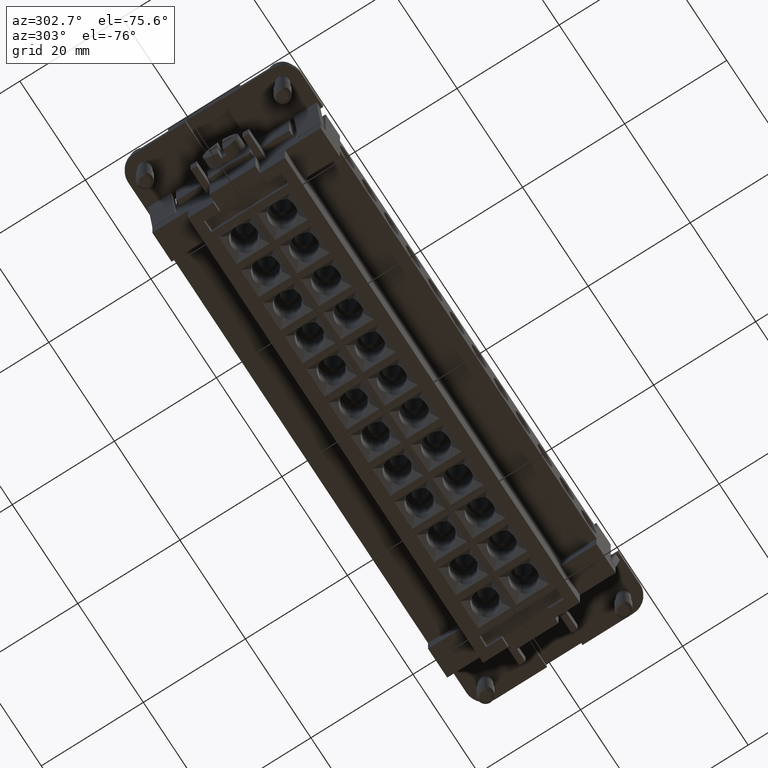
[diagram: clean part render]
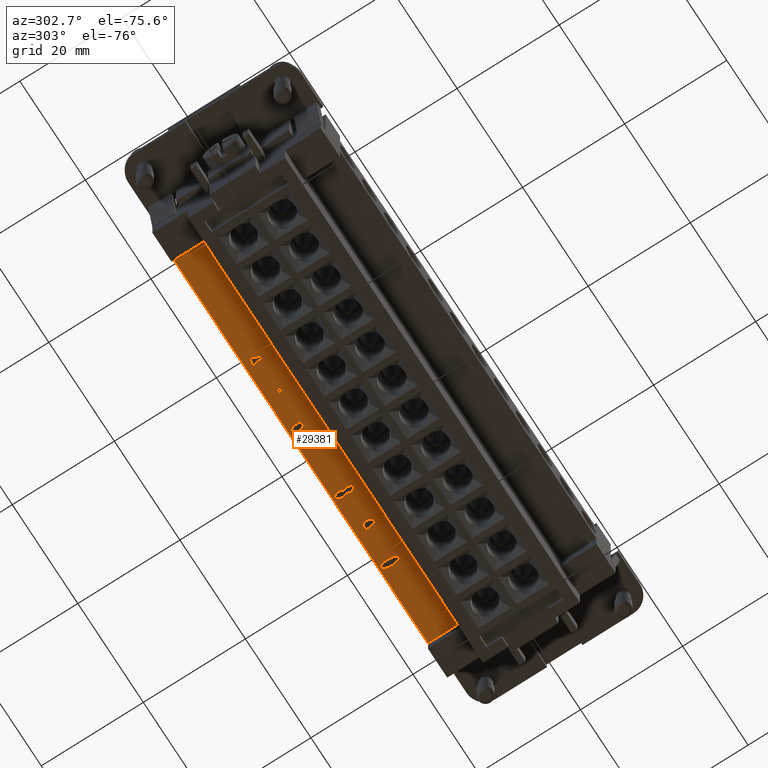
[diagram: same view with one face highlighted and labeled with its STEP entity id]
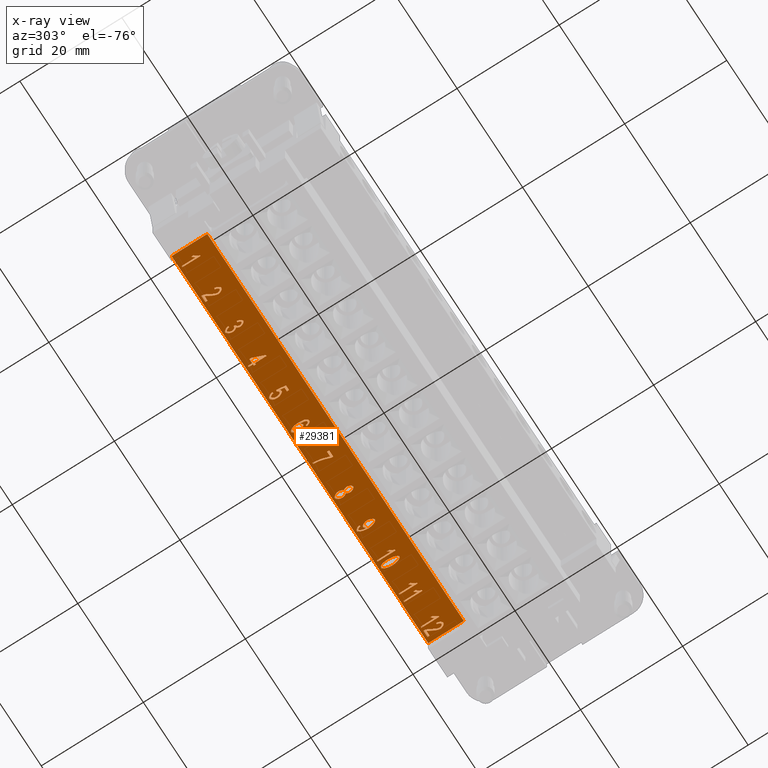
[diagram: x-ray of the same camera — body ghosted, the highlighted face saturated]
A machine part, auxiliary view. The second image highlights one B-rep face of the part: STEP entity #29381.
The next image is the same camera in x-ray: the body ghosted, the highlighted face saturated — about 0% of this face is hidden behind the body in this view.
In plain terms, the highlighted planar face has unit normal (0, 0, -1).
Its self-contained STEP definition (entity closure, byte-faithful):
#16999=CARTESIAN_POINT('',(36.356478648087524,16.013338513730456,8.650000000000000));
#17000=VERTEX_POINT('',#16999);
#17007=CARTESIAN_POINT('',(36.356478648087524,12.500000158928106,8.650000000000000));
#17008=VERTEX_POINT('',#17007);
#17009=CARTESIAN_POINT('',(36.356478648087524,12.500000158928106,8.650000000000000));
#17010=DIRECTION('',(0.0,1.0,0.0));
#17011=VECTOR('',#17010,3.513338354802350);
#17012=LINE('',#17009,#17011);
#17013=EDGE_CURVE('',#17008,#17000,#17012,.T.);
#17038=CARTESIAN_POINT('',(36.204420723847790,12.500000158928106,8.650000000000000));
#17039=VERTEX_POINT('',#17038);
#17040=CARTESIAN_POINT('',(36.204420723847790,12.500000158928106,8.650000000000000));
#17041=DIRECTION('',(1.0,0.0,0.0));
#17042=VECTOR('',#17041,0.152057924239735);
#17043=LINE('',#17040,#17042);
#17044=EDGE_CURVE('',#17039,#17008,#17043,.T.);
#17074=CARTESIAN_POINT('',(35.649542684516817,13.377667826908347,8.650000000000000));
#17075=VERTEX_POINT('',#17074);
#17076=CARTESIAN_POINT('',(35.649542684516817,13.377667826908347,8.650000000000000));
#17077=CARTESIAN_POINT('',(35.846951217740333,13.209603805380215,8.650000000000000));
#17078=CARTESIAN_POINT('',(36.143064017575611,12.726753203847014,8.650000000000000));
#17079=CARTESIAN_POINT('',(36.204420723847790,12.500000158928106,8.650000000000000));
#17080=QUASI_UNIFORM_CURVE('',3,(#17076,#17077,#17078,#17079),.UNSPECIFIED.,.F.,.U.);
#17081=EDGE_CURVE('',#17075,#17039,#17080,.T.);
#17106=CARTESIAN_POINT('',(35.649542684516817,13.793826356406571,8.650000000000000));
#17107=VERTEX_POINT('',#17106);
#17108=CARTESIAN_POINT('',(35.649542684516817,13.793826356406571,8.650000000000000));
#17109=DIRECTION('',(0.0,-1.0,0.0));
#17110=VECTOR('',#17109,0.416158529498224);
#17111=LINE('',#17108,#17110);
#17112=EDGE_CURVE('',#17107,#17075,#17111,.T.);
#17142=CARTESIAN_POINT('',(36.121722554524425,13.276295877415185,8.650000000000000));
#17143=VERTEX_POINT('',#17142);
#17144=CARTESIAN_POINT('',(36.121722554524425,13.276295877415185,8.650000000000000));
#17145=CARTESIAN_POINT('',(36.036356702319658,13.423018435892127,8.650000000000000));
#17146=CARTESIAN_POINT('',(35.758917682654172,13.719131235727403,8.650000000000000));
#17147=CARTESIAN_POINT('',(35.649542684516817,13.793826356406571,8.650000000000000));
#17148=QUASI_UNIFORM_CURVE('',3,(#17144,#17145,#17146,#17147),.UNSPECIFIED.,.F.,.U.);
#17149=EDGE_CURVE('',#17143,#17107,#17148,.T.);
#17174=CARTESIAN_POINT('',(36.121722554524425,16.013338513730456,8.650000000000000));
#17175=VERTEX_POINT('',#17174);
#17176=CARTESIAN_POINT('',(36.121722554524425,16.013338513730456,8.650000000000000));
#17177=DIRECTION('',(0.0,-1.0,0.0));
#17178=VECTOR('',#17177,2.737042636315271);
#17179=LINE('',#17176,#17178);
#17180=EDGE_CURVE('',#17175,#17143,#17179,.T.);
#17203=CARTESIAN_POINT('',(36.356478648087524,16.013338513730456,8.650000000000000));
#17204=DIRECTION('',(-1.0,0.0,0.0));
#17205=VECTOR('',#17204,0.234756093563099);
#17206=LINE('',#17203,#17205);
#17207=EDGE_CURVE('',#17000,#17175,#17206,.T.);
#17243=CARTESIAN_POINT('',(29.656478648087521,16.013338513730474,8.650000000000000));
#17244=VERTEX_POINT('',#17243);
#17251=CARTESIAN_POINT('',(29.656478648087521,12.500000158928124,8.650000000000000));
#17252=VERTEX_POINT('',#17251);
#17253=CARTESIAN_POINT('',(29.656478648087521,12.500000158928124,8.650000000000000));
#17254=DIRECTION('',(0.0,1.0,0.0));
#17255=VECTOR('',#17254,3.513338354802350);
#17256=LINE('',#17253,#17255);
#17257=EDGE_CURVE('',#17252,#17244,#17256,.T.);
#17282=CARTESIAN_POINT('',(29.504420723847787,12.500000158928124,8.650000000000000));
#17283=VERTEX_POINT('',#17282);
#17284=CARTESIAN_POINT('',(29.504420723847787,12.500000158928124,8.650000000000000));
#17285=DIRECTION('',(1.0,0.0,0.0));
#17286=VECTOR('',#17285,0.152057924239735);
#17287=LINE('',#17284,#17286);
#17288=EDGE_CURVE('',#17283,#17252,#17287,.T.);
#17318=CARTESIAN_POINT('',(28.949542684516814,13.377667826908365,8.650000000000000));
#17319=VERTEX_POINT('',#17318);
#17320=CARTESIAN_POINT('',(28.949542684516814,13.377667826908365,8.650000000000000));
#17321=CARTESIAN_POINT('',(29.146951217740337,13.209603805380233,8.650000000000000));
#17322=CARTESIAN_POINT('',(29.443064017575615,12.726753203847032,8.650000000000000));
#17323=CARTESIAN_POINT('',(29.504420723847787,12.500000158928124,8.650000000000000));
#17324=QUASI_UNIFORM_CURVE('',3,(#17320,#17321,#17322,#17323),.UNSPECIFIED.,.F.,.U.);
#17325=EDGE_CURVE('',#17319,#17283,#17324,.T.);
#17350=CARTESIAN_POINT('',(28.949542684516814,13.793826356406589,8.650000000000000));
#17351=VERTEX_POINT('',#17350);
#17352=CARTESIAN_POINT('',(28.949542684516814,13.793826356406589,8.650000000000000));
#17353=DIRECTION('',(0.0,-1.0,0.0));
#17354=VECTOR('',#17353,0.416158529498224);
#17355=LINE('',#17352,#17354);
#17356=EDGE_CURVE('',#17351,#17319,#17355,.T.);
#17386=CARTESIAN_POINT('',(29.421722554524425,13.276295877415203,8.650000000000000));
#17387=VERTEX_POINT('',#17386);
#17388=CARTESIAN_POINT('',(29.421722554524425,13.276295877415203,8.650000000000000));
#17389=CARTESIAN_POINT('',(29.336356702319655,13.423018435892144,8.650000000000000));
#17390=CARTESIAN_POINT('',(29.058917682654169,13.719131235727421,8.650000000000000));
#17391=CARTESIAN_POINT('',(28.949542684516814,13.793826356406589,8.650000000000000));
#17392=QUASI_UNIFORM_CURVE('',3,(#17388,#17389,#17390,#17391),.UNSPECIFIED.,.F.,.U.);
#17393=EDGE_CURVE('',#17387,#17351,#17392,.T.);
#17418=CARTESIAN_POINT('',(29.421722554524425,16.013338513730474,8.650000000000000));
#17419=VERTEX_POINT('',#17418);
#17420=CARTESIAN_POINT('',(29.421722554524425,16.013338513730474,8.650000000000000));
#17421=DIRECTION('',(0.0,-1.0,0.0));
#17422=VECTOR('',#17421,2.737042636315271);
#17423=LINE('',#17420,#17422);
#17424=EDGE_CURVE('',#17419,#17387,#17423,.T.);
#17447=CARTESIAN_POINT('',(29.656478648087521,16.013338513730474,8.650000000000000));
#17448=DIRECTION('',(-1.0,0.0,0.0));
#17449=VECTOR('',#17448,0.234756093563096);
#17450=LINE('',#17447,#17449);
#17451=EDGE_CURVE('',#17244,#17419,#17450,.T.);
#17487=CARTESIAN_POINT('',(22.956478648087540,16.013338513730492,8.650000000000000));
#17488=VERTEX_POINT('',#17487);
#17495=CARTESIAN_POINT('',(22.956478648087540,12.500000158928145,8.650000000000000));
#17496=VERTEX_POINT('',#17495);
#17497=CARTESIAN_POINT('',(22.956478648087540,12.500000158928145,8.650000000000000));
#17498=DIRECTION('',(0.0,1.0,0.0));
#17499=VECTOR('',#17498,3.513338354802347);
#17500=LINE('',#17497,#17499);
#17501=EDGE_CURVE('',#17496,#17488,#17500,.T.);
#17526=CARTESIAN_POINT('',(22.804420723847805,12.500000158928145,8.650000000000000));
#17527=VERTEX_POINT('',#17526);
#17528=CARTESIAN_POINT('',(22.804420723847805,12.500000158928145,8.650000000000000));
#17529=DIRECTION('',(1.0,0.0,0.0));
#17530=VECTOR('',#17529,0.152057924239735);
#17531=LINE('',#17528,#17530);
#17532=EDGE_CURVE('',#17527,#17496,#17531,.T.);
#17562=CARTESIAN_POINT('',(22.249542684516832,13.377667826908382,8.650000000000000));
#17563=VERTEX_POINT('',#17562);
#17564=CARTESIAN_POINT('',(22.249542684516832,13.377667826908382,8.650000000000000));
#17565=CARTESIAN_POINT('',(22.446951217740356,13.209603805380251,8.650000000000000));
#17566=CARTESIAN_POINT('',(22.743064017575634,12.726753203847050,8.650000000000000));
#17567=CARTESIAN_POINT('',(22.804420723847805,12.500000158928145,8.650000000000000));
#17568=QUASI_UNIFORM_CURVE('',3,(#17564,#17565,#17566,#17567),.UNSPECIFIED.,.F.,.U.);
#17569=EDGE_CURVE('',#17563,#17527,#17568,.T.);
#17594=CARTESIAN_POINT('',(22.249542684516832,13.793826356406612,8.650000000000000));
#17595=VERTEX_POINT('',#17594);
#17596=CARTESIAN_POINT('',(22.249542684516832,13.793826356406612,8.650000000000000));
#17597=DIRECTION('',(0.0,-1.0,0.0));
#17598=VECTOR('',#17597,0.416158529498230);
#17599=LINE('',#17596,#17598);
#17600=EDGE_CURVE('',#17595,#17563,#17599,.T.);
#17630=CARTESIAN_POINT('',(22.721722554524444,13.276295877415226,8.650000000000000));
#17631=VERTEX_POINT('',#17630);
#17632=CARTESIAN_POINT('',(22.721722554524444,13.276295877415226,8.650000000000000));
#17633=CARTESIAN_POINT('',(22.636356702319674,13.423018435892162,8.650000000000000));
#17634=CARTESIAN_POINT('',(22.358917682654187,13.719131235727442,8.650000000000000));
#17635=CARTESIAN_POINT('',(22.249542684516832,13.793826356406612,8.650000000000000));
#17636=QUASI_UNIFORM_CURVE('',3,(#17632,#17633,#17634,#17635),.UNSPECIFIED.,.F.,.U.);
#17637=EDGE_CURVE('',#17631,#17595,#17636,.T.);
#17662=CARTESIAN_POINT('',(22.721722554524444,16.013338513730492,8.650000000000000));
#17663=VERTEX_POINT('',#17662);
#17664=CARTESIAN_POINT('',(22.721722554524444,16.013338513730492,8.650000000000000));
#17665=DIRECTION('',(0.0,-1.0,0.0));
#17666=VECTOR('',#17665,2.737042636315266);
#17667=LINE('',#17664,#17666);
#17668=EDGE_CURVE('',#17663,#17631,#17667,.T.);
#17691=CARTESIAN_POINT('',(22.956478648087540,16.013338513730492,8.650000000000000));
#17692=DIRECTION('',(-1.0,0.0,0.0));
#17693=VECTOR('',#17692,0.234756093563096);
#17694=LINE('',#17691,#17693);
#17695=EDGE_CURVE('',#17488,#17663,#17694,.T.);
#18036=CARTESIAN_POINT('',(9.781897860992572,14.113948302174517,8.650000000000000));
#18037=VERTEX_POINT('',#18036);
#18044=CARTESIAN_POINT('',(9.413757623359524,14.999619018798951,8.650000000000000));
#18045=VERTEX_POINT('',#18044);
#18046=CARTESIAN_POINT('',(9.413757623359524,14.999619018798951,8.650000000000000));
#18047=CARTESIAN_POINT('',(9.413757623359524,14.658155609979890,8.650000000000000));
#18048=CARTESIAN_POINT('',(9.605830790820242,14.196646471497880,8.650000000000000));
#18049=CARTESIAN_POINT('',(9.781897860992572,14.113948302174517,8.650000000000000));
#18050=QUASI_UNIFORM_CURVE('',3,(#18046,#18047,#18048,#18049),.UNSPECIFIED.,.F.,.U.);
#18051=EDGE_CURVE('',#18045,#18037,#18050,.T.);
#18081=CARTESIAN_POINT('',(10.045998466251067,16.072027537121308,8.650000000000000));
#18082=VERTEX_POINT('',#18081);
#18083=CARTESIAN_POINT('',(10.045998466251067,16.072027537121308,8.650000000000000));
#18084=CARTESIAN_POINT('',(9.763224080822779,16.072027537121308,8.650000000000000));
#18085=CARTESIAN_POINT('',(9.413757623359524,15.458460474399560,8.650000000000000));
#18086=CARTESIAN_POINT('',(9.413757623359524,14.999619018798951,8.650000000000000));
#18087=QUASI_UNIFORM_CURVE('',3,(#18083,#18084,#18085,#18086),.UNSPECIFIED.,.F.,.U.);
#18088=EDGE_CURVE('',#18082,#18045,#18087,.T.);
#18118=CARTESIAN_POINT('',(10.678239309142599,15.012957433205948,8.650000000000000));
#18119=VERTEX_POINT('',#18118);
#18120=CARTESIAN_POINT('',(10.678239309142601,15.012957433205948,8.650000000000000));
#18121=CARTESIAN_POINT('',(10.678239309142601,15.461128157280960,8.650000000000000));
#18122=CARTESIAN_POINT('',(10.328772851679346,16.072027537121308,8.650000000000000));
#18123=CARTESIAN_POINT('',(10.045998466251067,16.072027537121308,8.650000000000000));
#18124=QUASI_UNIFORM_CURVE('',3,(#18120,#18121,#18122,#18123),.UNSPECIFIED.,.F.,.U.);
#18125=EDGE_CURVE('',#18119,#18082,#18124,.T.);
#18155=CARTESIAN_POINT('',(10.318102120153751,14.113948302174519,8.650000000000000));
#18156=VERTEX_POINT('',#18155);
#18157=CARTESIAN_POINT('',(10.318102120153751,14.113948302174517,8.650000000000000));
#18158=CARTESIAN_POINT('',(10.494169190326081,14.217987934549075,8.650000000000000));
#18159=CARTESIAN_POINT('',(10.678239309142601,14.687500121675278,8.650000000000000));
#18160=CARTESIAN_POINT('',(10.678239309142601,15.012957433205948,8.650000000000000));
#18161=QUASI_UNIFORM_CURVE('',3,(#18157,#18158,#18159,#18160),.UNSPECIFIED.,.F.,.U.);
#18162=EDGE_CURVE('',#18156,#18119,#18161,.T.);
#18192=CARTESIAN_POINT('',(10.600876505582029,13.412347704366606,8.650000000000000));
#18193=VERTEX_POINT('',#18192);
#18194=CARTESIAN_POINT('',(10.600876505582031,13.412347704366606,8.650000000000000));
#18195=CARTESIAN_POINT('',(10.600876505582031,13.655106846573904,8.650000000000000));
#18196=CARTESIAN_POINT('',(10.459489312867891,14.015244035562757,8.650000000000000));
#18197=CARTESIAN_POINT('',(10.318102120153751,14.113948302174517,8.650000000000000));
#18198=QUASI_UNIFORM_CURVE('',3,(#18194,#18195,#18196,#18197),.UNSPECIFIED.,.F.,.U.);
#18199=EDGE_CURVE('',#18193,#18156,#18198,.T.);
#18229=CARTESIAN_POINT('',(10.043330783369663,12.500000158928181,8.650000000000000));
#18230=VERTEX_POINT('',#18229);
#18231=CARTESIAN_POINT('',(10.043330783369662,12.500000158928181,8.650000000000000));
#18232=CARTESIAN_POINT('',(10.294092974221165,12.500000158928181,8.650000000000000));
#18233=CARTESIAN_POINT('',(10.600876505582031,13.030869052326564,8.650000000000000));
#18234=CARTESIAN_POINT('',(10.600876505582031,13.412347704366606,8.650000000000000));
#18235=QUASI_UNIFORM_CURVE('',3,(#18231,#18232,#18233,#18234),.UNSPECIFIED.,.F.,.U.);
#18236=EDGE_CURVE('',#18230,#18193,#18235,.T.);
#18266=CARTESIAN_POINT('',(9.491120426920096,13.401676972841006,8.650000000000000));
#18267=VERTEX_POINT('',#18266);
#18268=CARTESIAN_POINT('',(9.491120426920094,13.401676972841008,8.650000000000000));
#18269=CARTESIAN_POINT('',(9.491120426920094,13.020198320800969,8.650000000000000));
#18270=CARTESIAN_POINT('',(9.792568592518167,12.500000158928181,8.650000000000000));
#18271=CARTESIAN_POINT('',(10.043330783369662,12.500000158928181,8.650000000000000));
#18272=QUASI_UNIFORM_CURVE('',3,(#18268,#18269,#18270,#18271),.UNSPECIFIED.,.F.,.U.);
#18273=EDGE_CURVE('',#18267,#18230,#18272,.T.);
#18301=CARTESIAN_POINT('',(9.781897860992572,14.113948302174517,8.650000000000000));
#18302=CARTESIAN_POINT('',(9.632507619634234,14.015244035562757,8.650000000000000));
#18303=CARTESIAN_POINT('',(9.491120426920094,13.652439163692506,8.650000000000000));
#18304=CARTESIAN_POINT('',(9.491120426920094,13.401676972841008,8.650000000000000));
#18305=QUASI_UNIFORM_CURVE('',3,(#18301,#18302,#18303,#18304),.UNSPECIFIED.,.F.,.U.);
#18306=EDGE_CURVE('',#18037,#18267,#18305,.T.);
#18512=CARTESIAN_POINT('',(-2.759108251196976,13.372332461145660,8.650000000000000));
#18513=VERTEX_POINT('',#18512);
#18520=CARTESIAN_POINT('',(-3.303315559002353,12.500000158928216,8.650000000000000));
#18521=VERTEX_POINT('',#18520);
#18522=CARTESIAN_POINT('',(-3.303315559002353,12.500000158928216,8.650000000000000));
#18523=CARTESIAN_POINT('',(-3.076562514083445,12.500000158928216,8.650000000000000));
#18524=CARTESIAN_POINT('',(-2.788452762892364,12.964176980291624,8.650000000000000));
#18525=CARTESIAN_POINT('',(-2.759108251196976,13.372332461145660,8.650000000000000));
#18526=QUASI_UNIFORM_CURVE('',3,(#18522,#18523,#18524,#18525),.UNSPECIFIED.,.F.,.U.);
#18527=EDGE_CURVE('',#18521,#18513,#18526,.T.);
#18554=CARTESIAN_POINT('',(-3.788833843416950,12.900152591138054,8.650000000000000));
#18555=VERTEX_POINT('',#18554);
#18556=CARTESIAN_POINT('',(-3.788833843416950,12.900152591138054,8.650000000000000));
#18557=CARTESIAN_POINT('',(-3.607431407481827,12.500000158928216,8.650000000000000));
#18558=CARTESIAN_POINT('',(-3.303315559002353,12.500000158928216,8.650000000000000));
#18559=QUASI_UNIFORM_CURVE('',2,(#18556,#18557,#18558),.UNSPECIFIED.,.F.,.U.);
#18560=EDGE_CURVE('',#18555,#18521,#18559,.T.);
#18587=CARTESIAN_POINT('',(-3.994245425284668,14.375381224551642,8.650000000000000));
#18588=VERTEX_POINT('',#18587);
#18589=CARTESIAN_POINT('',(-3.994245425284668,14.375381224551642,8.650000000000000));
#18590=CARTESIAN_POINT('',(-3.994245425284668,13.361661729620060,8.650000000000000));
#18591=CARTESIAN_POINT('',(-3.788833843416950,12.900152591138054,8.650000000000000));
#18592=QUASI_UNIFORM_CURVE('',2,(#18589,#18590,#18591),.UNSPECIFIED.,.F.,.U.);
#18593=EDGE_CURVE('',#18588,#18555,#18592,.T.);
#18623=CARTESIAN_POINT('',(-3.327324704934940,16.072027537121343,8.650000000000000));
#18624=VERTEX_POINT('',#18623);
#18625=CARTESIAN_POINT('',(-3.327324704934940,16.072027537121343,8.650000000000000));
#18626=CARTESIAN_POINT('',(-3.623437504770219,16.072027537121343,8.650000000000000));
#18627=CARTESIAN_POINT('',(-3.994245425284668,15.282393404227271,8.650000000000000));
#18628=CARTESIAN_POINT('',(-3.994245425284668,14.375381224551642,8.650000000000000));
#18629=QUASI_UNIFORM_CURVE('',3,(#18625,#18626,#18627,#18628),.UNSPECIFIED.,.F.,.U.);
#18630=EDGE_CURVE('',#18624,#18588,#18629,.T.);
#18663=CARTESIAN_POINT('',(-2.727096056620191,14.876905606254635,8.650000000000000));
#18664=VERTEX_POINT('',#18663);
#18665=CARTESIAN_POINT('',(-2.727096056620191,14.876905606254635,8.650000000000000));
#18666=CARTESIAN_POINT('',(-2.727096056620191,15.205030600666699,8.650000000000000));
#18667=CARTESIAN_POINT('',(-2.881821663741326,15.770579371523269,8.650000000000000));
#18668=CARTESIAN_POINT('',(-3.153925317644015,16.072027537121343,8.650000000000000));
#18669=CARTESIAN_POINT('',(-3.327324704934940,16.072027537121343,8.650000000000000));
#18670=QUASI_UNIFORM_CURVE('',4,(#18665,#18666,#18667,#18668,#18669),.UNSPECIFIED.,.F.,.U.);
#18671=EDGE_CURVE('',#18664,#18624,#18670,.T.);
#18701=CARTESIAN_POINT('',(-3.292644827476754,13.743140381660107,8.650000000000000));
#18702=VERTEX_POINT('',#18701);
#18703=CARTESIAN_POINT('',(-3.292644827476754,13.743140381660105,8.650000000000000));
#18704=CARTESIAN_POINT('',(-3.057888733913652,13.743140381660105,8.650000000000000));
#18705=CARTESIAN_POINT('',(-2.727096056620191,14.375381224551642,8.650000000000000));
#18706=CARTESIAN_POINT('',(-2.727096056620191,14.876905606254635,8.650000000000000));
#18707=QUASI_UNIFORM_CURVE('',3,(#18703,#18704,#18705,#18706),.UNSPECIFIED.,.F.,.U.);
#18708=EDGE_CURVE('',#18702,#18664,#18707,.T.);
#18738=CARTESIAN_POINT('',(-3.759489331721561,14.209984885904909,8.650000000000000));
#18739=VERTEX_POINT('',#18738);
#18740=CARTESIAN_POINT('',(-3.759489331721562,14.209984885904912,8.650000000000000));
#18741=CARTESIAN_POINT('',(-3.674123479516798,13.972561109460408,8.650000000000000));
#18742=CARTESIAN_POINT('',(-3.428696654428101,13.743140381660105,8.650000000000000));
#18743=CARTESIAN_POINT('',(-3.292644827476754,13.743140381660105,8.650000000000000));
#18744=QUASI_UNIFORM_CURVE('',3,(#18740,#18741,#18742,#18743),.UNSPECIFIED.,.F.,.U.);
#18745=EDGE_CURVE('',#18739,#18702,#18744,.T.);
#18775=CARTESIAN_POINT('',(-3.519397872395662,12.966844663173024,8.650000000000000));
#18776=VERTEX_POINT('',#18775);
#18777=CARTESIAN_POINT('',(-3.519397872395662,12.966844663173024,8.650000000000000));
#18778=CARTESIAN_POINT('',(-3.628772870533017,13.113567221649966,8.650000000000000));
#18779=CARTESIAN_POINT('',(-3.756821648840165,13.684451358269328,8.650000000000000));
#18780=CARTESIAN_POINT('',(-3.759489331721562,14.209984885904912,8.650000000000000));
#18781=QUASI_UNIFORM_CURVE('',3,(#18777,#18778,#18779,#18780),.UNSPECIFIED.,.F.,.U.);
#18782=EDGE_CURVE('',#18776,#18739,#18781,.T.);
#18809=CARTESIAN_POINT('',(-3.319321656290746,12.852134299272873,8.650000000000000));
#18810=VERTEX_POINT('',#18809);
#18811=CARTESIAN_POINT('',(-3.319321656290746,12.852134299272873,8.650000000000000));
#18812=CARTESIAN_POINT('',(-3.431364337309497,12.852134299272873,8.650000000000000));
#18813=CARTESIAN_POINT('',(-3.519397872395662,12.966844663173024,8.650000000000000));
#18814=QUASI_UNIFORM_CURVE('',2,(#18811,#18812,#18813),.UNSPECIFIED.,.F.,.U.);
#18815=EDGE_CURVE('',#18810,#18776,#18814,.T.);
#18842=CARTESIAN_POINT('',(-3.081897879846243,13.036204418089399,8.650000000000000));
#18843=VERTEX_POINT('',#18842);
#18844=CARTESIAN_POINT('',(-3.081897879846243,13.036204418089397,8.650000000000000));
#18845=CARTESIAN_POINT('',(-3.177934463576602,12.852134299272873,8.650000000000000));
#18846=CARTESIAN_POINT('',(-3.319321656290746,12.852134299272873,8.650000000000000));
#18847=QUASI_UNIFORM_CURVE('',2,(#18844,#18845,#18846),.UNSPECIFIED.,.F.,.U.);
#18848=EDGE_CURVE('',#18843,#18810,#18847,.T.);
#18875=CARTESIAN_POINT('',(-2.993864344760078,13.407012338603845,8.650000000000000));
#18876=VERTEX_POINT('',#18875);
#18877=CARTESIAN_POINT('',(-2.993864344760078,13.407012338603845,8.650000000000000));
#18878=CARTESIAN_POINT('',(-3.025876539336867,13.153582464870951,8.650000000000000));
#18879=CARTESIAN_POINT('',(-3.081897879846243,13.036204418089397,8.650000000000000));
#18880=QUASI_UNIFORM_CURVE('',2,(#18877,#18878,#18879),.UNSPECIFIED.,.F.,.U.);
#18881=EDGE_CURVE('',#18876,#18843,#18880,.T.);
#18904=CARTESIAN_POINT('',(-2.759108251196976,13.372332461145660,8.650000000000000));
#18905=DIRECTION('',(-0.989263736217635,0.146141233759421,0.0));
#18906=VECTOR('',#18905,0.237303850296456);
#18907=LINE('',#18904,#18906);
#18908=EDGE_CURVE('',#18513,#18876,#18907,.T.);
#19048=CARTESIAN_POINT('',(-16.628620438323178,16.000000098720243,8.650000000000000));
#19049=VERTEX_POINT('',#19048);
#19056=CARTESIAN_POINT('',(-16.393864344760072,16.000000098720243,8.650000000000000));
#19057=VERTEX_POINT('',#19056);
#19058=CARTESIAN_POINT('',(-16.393864344760072,16.000000098720243,8.650000000000000));
#19059=DIRECTION('',(-1.0,0.0,0.0));
#19060=VECTOR('',#19059,0.234756093563107);
#19061=LINE('',#19058,#19060);
#19062=EDGE_CURVE('',#19057,#19049,#19061,.T.);
#19087=CARTESIAN_POINT('',(-16.393864344760072,15.162347673960985,8.650000000000000));
#19088=VERTEX_POINT('',#19087);
#19089=CARTESIAN_POINT('',(-16.393864344760072,15.162347673960985,8.650000000000000));
#19090=DIRECTION('',(0.0,1.0,0.0));
#19091=VECTOR('',#19090,0.837652424759257);
#19092=LINE('',#19089,#19091);
#19093=EDGE_CURVE('',#19088,#19057,#19092,.T.);
#19118=CARTESIAN_POINT('',(-16.135099105264381,15.162347673960985,8.650000000000000));
#19119=VERTEX_POINT('',#19118);
#19120=CARTESIAN_POINT('',(-16.135099105264381,15.162347673960985,8.650000000000000));
#19121=DIRECTION('',(-1.0,0.0,0.0));
#19122=VECTOR('',#19121,0.258765239495691);
#19123=LINE('',#19120,#19122);
#19124=EDGE_CURVE('',#19119,#19088,#19123,.T.);
#19149=CARTESIAN_POINT('',(-16.135099105264381,14.767530607513951,8.650000000000000));
#19150=VERTEX_POINT('',#19149);
#19151=CARTESIAN_POINT('',(-16.135099105264381,14.767530607513951,8.650000000000000));
#19152=DIRECTION('',(0.0,1.0,0.0));
#19153=VECTOR('',#19152,0.394817066447034);
#19154=LINE('',#19151,#19153);
#19155=EDGE_CURVE('',#19150,#19119,#19154,.T.);
#19180=CARTESIAN_POINT('',(-16.393864344760072,14.767530607513951,8.650000000000000));
#19181=VERTEX_POINT('',#19180);
#19182=CARTESIAN_POINT('',(-16.393864344760072,14.767530607513951,8.650000000000000));
#19183=DIRECTION('',(1.0,0.0,0.0));
#19184=VECTOR('',#19183,0.258765239495691);
#19185=LINE('',#19182,#19184);
#19186=EDGE_CURVE('',#19181,#19150,#19185,.T.);
#19211=CARTESIAN_POINT('',(-16.393864344760072,12.500000158324887,8.650000000000000));
#19212=VERTEX_POINT('',#19211);
#19213=CARTESIAN_POINT('',(-16.393864344760072,12.500000158324887,8.650000000000000));
#19214=DIRECTION('',(0.0,1.0,0.0));
#19215=VECTOR('',#19214,2.267530449189064);
#19216=LINE('',#19213,#19215);
#19217=EDGE_CURVE('',#19212,#19181,#19216,.T.);
#19242=CARTESIAN_POINT('',(-16.585937512220795,12.500000158324887,8.650000000000000));
#19243=VERTEX_POINT('',#19242);
#19244=CARTESIAN_POINT('',(-16.585937512220795,12.500000158324887,8.650000000000000));
#19245=DIRECTION('',(1.0,0.0,0.0));
#19246=VECTOR('',#19245,0.192073167460723);
#19247=LINE('',#19244,#19246);
#19248=EDGE_CURVE('',#19243,#19212,#19247,.T.);
#19273=CARTESIAN_POINT('',(-17.463605180201036,14.767530607513951,8.650000000000000));
#19274=VERTEX_POINT('',#19273);
#19275=CARTESIAN_POINT('',(-17.463605180201036,14.767530607513951,8.650000000000000));
#19276=DIRECTION('',(0.360963322504404,-0.932580012549369,0.0));
#19277=VECTOR('',#19276,2.431459412249654);
#19278=LINE('',#19275,#19277);
#19279=EDGE_CURVE('',#19274,#19243,#19278,.T.);
#19304=CARTESIAN_POINT('',(-17.463605180201036,15.162347673960985,8.650000000000000));
#19305=VERTEX_POINT('',#19304);
#19306=CARTESIAN_POINT('',(-17.463605180201036,15.162347673960985,8.650000000000000));
#19307=DIRECTION('',(0.0,-1.0,0.0));
#19308=VECTOR('',#19307,0.394817066447034);
#19309=LINE('',#19306,#19308);
#19310=EDGE_CURVE('',#19305,#19274,#19309,.T.);
#19335=CARTESIAN_POINT('',(-16.628620438323178,15.162347673960985,8.650000000000000));
#19336=VERTEX_POINT('',#19335);
#19337=CARTESIAN_POINT('',(-16.628620438323178,15.162347673960985,8.650000000000000));
#19338=DIRECTION('',(-1.0,0.0,0.0));
#19339=VECTOR('',#19338,0.834984741877857);
#19340=LINE('',#19337,#19339);
#19341=EDGE_CURVE('',#19336,#19305,#19340,.T.);
#19364=CARTESIAN_POINT('',(-16.628620438323178,16.000000098720243,8.650000000000000));
#19365=DIRECTION('',(0.0,-1.0,0.0));
#19366=VECTOR('',#19365,0.837652424759257);
#19367=LINE('',#19364,#19366);
#19368=EDGE_CURVE('',#19049,#19336,#19367,.T.);
#19413=CARTESIAN_POINT('',(-29.545769836789965,15.599847667113815,8.650000000000000));
#19414=VERTEX_POINT('',#19413);
#19421=CARTESIAN_POINT('',(-30.487461893923779,15.599847667113815,8.650000000000000));
#19422=VERTEX_POINT('',#19421);
#19423=CARTESIAN_POINT('',(-30.487461893923779,15.599847667113815,8.650000000000000));
#19424=DIRECTION('',(1.0,0.0,0.0));
#19425=VECTOR('',#19424,0.941692057133814);
#19426=LINE('',#19423,#19425);
#19427=EDGE_CURVE('',#19422,#19414,#19426,.T.);
#19457=CARTESIAN_POINT('',(-30.116653973409324,14.927591581001288,8.650000000000000));
#19458=VERTEX_POINT('',#19457);
#19459=CARTESIAN_POINT('',(-30.116653973409328,14.927591581001289,8.650000000000000));
#19460=CARTESIAN_POINT('',(-30.330068603921241,15.250381209650556,8.650000000000000));
#19461=CARTESIAN_POINT('',(-30.450114333584189,15.482469620332262,8.650000000000000));
#19462=CARTESIAN_POINT('',(-30.487461893923779,15.599847667113815,8.650000000000000));
#19463=QUASI_UNIFORM_CURVE('',3,(#19459,#19460,#19461,#19462),.UNSPECIFIED.,.F.,.U.);
#19464=EDGE_CURVE('',#19458,#19422,#19463,.T.);
#19497=CARTESIAN_POINT('',(-29.548437519671360,13.471036727757493,8.650000000000000));
#19498=VERTEX_POINT('',#19497);
#19499=CARTESIAN_POINT('',(-29.548437519671360,13.471036727757490,8.650000000000000));
#19500=CARTESIAN_POINT('',(-29.548437519671360,13.681783675388006,8.650000000000000));
#19501=CARTESIAN_POINT('',(-29.641806420520325,14.087271473360637,8.650000000000000));
#19502=CARTESIAN_POINT('',(-29.863224099676433,14.535442197435650,8.650000000000000));
#19503=CARTESIAN_POINT('',(-30.116653973409328,14.927591581001289,8.650000000000000));
#19504=QUASI_UNIFORM_CURVE('',4,(#19499,#19500,#19501,#19502,#19503),.UNSPECIFIED.,.F.,.U.);
#19505=EDGE_CURVE('',#19498,#19458,#19504,.T.);
#19535=CARTESIAN_POINT('',(-30.148666167986118,12.500000158928293,8.650000000000000));
#19536=VERTEX_POINT('',#19535);
#19537=CARTESIAN_POINT('',(-30.148666167986114,12.500000158928293,8.650000000000000));
#19538=CARTESIAN_POINT('',(-29.871227148320632,12.500000158928293,8.650000000000000));
#19539=CARTESIAN_POINT('',(-29.548437519671360,13.057545881140662,8.650000000000000));
#19540=CARTESIAN_POINT('',(-29.548437519671360,13.471036727757490,8.650000000000000));
#19541=QUASI_UNIFORM_CURVE('',3,(#19537,#19538,#19539,#19540),.UNSPECIFIED.,.F.,.U.);
#19542=EDGE_CURVE('',#19536,#19498,#19541,.T.);
#19572=CARTESIAN_POINT('',(-30.772903962233457,13.511051970978475,8.650000000000000));
#19573=VERTEX_POINT('',#19572);
#19574=CARTESIAN_POINT('',(-30.772903962233457,13.511051970978475,8.650000000000000));
#19575=CARTESIAN_POINT('',(-30.748894816300869,13.017530637919679,8.650000000000000));
#19576=CARTESIAN_POINT('',(-30.423437504770199,12.500000158928293,8.650000000000000));
#19577=CARTESIAN_POINT('',(-30.148666167986114,12.500000158928293,8.650000000000000));
#19578=QUASI_UNIFORM_CURVE('',3,(#19574,#19575,#19576,#19577),.UNSPECIFIED.,.F.,.U.);
#19579=EDGE_CURVE('',#19573,#19536,#19578,.T.);
#19604=CARTESIAN_POINT('',(-30.530144820026159,13.556402579962260,8.650000000000000));
#19605=VERTEX_POINT('',#19604);
#19606=CARTESIAN_POINT('',(-30.530144820026159,13.556402579962260,8.650000000000000));
#19607=DIRECTION('',(-0.982994258860220,-0.183636290116762,0.0));
#19608=VECTOR('',#19607,0.246958860663924);
#19609=LINE('',#19606,#19608);
#19610=EDGE_CURVE('',#19605,#19573,#19609,.T.);
#19640=CARTESIAN_POINT('',(-30.154001533748911,12.854801982154346,8.650000000000000));
#19641=VERTEX_POINT('',#19640);
#19642=CARTESIAN_POINT('',(-30.154001533748911,12.854801982154346,8.650000000000000));
#19643=CARTESIAN_POINT('',(-30.324733238158444,12.854801982154346,8.650000000000000));
#19644=CARTESIAN_POINT('',(-30.530144820026159,13.228277585550195,8.650000000000000));
#19645=CARTESIAN_POINT('',(-30.530144820026159,13.556402579962260,8.650000000000000));
#19646=QUASI_UNIFORM_CURVE('',3,(#19642,#19643,#19644,#19645),.UNSPECIFIED.,.F.,.U.);
#19647=EDGE_CURVE('',#19641,#19605,#19646,.T.);
#19677=CARTESIAN_POINT('',(-29.791196661878661,13.460365996231896,8.650000000000000));
#19678=VERTEX_POINT('',#19677);
#19679=CARTESIAN_POINT('',(-29.791196661878665,13.460365996231896,8.650000000000000));
#19680=CARTESIAN_POINT('',(-29.791196661878665,13.204268439617604,8.650000000000000));
#19681=CARTESIAN_POINT('',(-29.991272877983583,12.854801982154346,8.650000000000000));
#19682=CARTESIAN_POINT('',(-30.154001533748911,12.854801982154346,8.650000000000000));
#19683=QUASI_UNIFORM_CURVE('',3,(#19679,#19680,#19681,#19682),.UNSPECIFIED.,.F.,.U.);
#19684=EDGE_CURVE('',#19678,#19641,#19683,.T.);
#19714=CARTESIAN_POINT('',(-30.324733238158444,14.719512316252182,8.650000000000000));
#19715=VERTEX_POINT('',#19714);
#19716=CARTESIAN_POINT('',(-30.324733238158444,14.719512316252178,8.650000000000000));
#19717=CARTESIAN_POINT('',(-30.012614341034769,14.252667812007370,8.650000000000000));
#19718=CARTESIAN_POINT('',(-29.791196661878665,13.705792821320596,8.650000000000000));
#19719=CARTESIAN_POINT('',(-29.791196661878665,13.460365996231896,8.650000000000000));
#19720=QUASI_UNIFORM_CURVE('',3,(#19716,#19717,#19718,#19719),.UNSPECIFIED.,.F.,.U.);
#19721=EDGE_CURVE('',#19715,#19678,#19720,.T.);
#19751=CARTESIAN_POINT('',(-30.791577742403248,15.714558031013969,8.650000000000000));
#19752=VERTEX_POINT('',#19751);
#19753=CARTESIAN_POINT('',(-30.791577742403248,15.714558031013969,8.650000000000000));
#19754=CARTESIAN_POINT('',(-30.740891767656670,15.477134254569464,8.650000000000000));
#19755=CARTESIAN_POINT('',(-30.527477137144761,15.018292798968854,8.650000000000000));
#19756=CARTESIAN_POINT('',(-30.324733238158444,14.719512316252178,8.650000000000000));
#19757=QUASI_UNIFORM_CURVE('',3,(#19753,#19754,#19755,#19756),.UNSPECIFIED.,.F.,.U.);
#19758=EDGE_CURVE('',#19752,#19715,#19757,.T.);
#19785=CARTESIAN_POINT('',(-30.818254571217238,16.013338513730645,8.650000000000000));
#19786=VERTEX_POINT('',#19785);
#19787=CARTESIAN_POINT('',(-30.818254571217238,16.013338513730645,8.650000000000000));
#19788=CARTESIAN_POINT('',(-30.820922254098633,15.858612906609508,8.650000000000000));
#19789=CARTESIAN_POINT('',(-30.791577742403248,15.714558031013969,8.650000000000000));
#19790=QUASI_UNIFORM_CURVE('',2,(#19787,#19788,#19789),.UNSPECIFIED.,.F.,.U.);
#19791=EDGE_CURVE('',#19786,#19752,#19790,.T.);
#19816=CARTESIAN_POINT('',(-29.545769836789965,16.013338513730645,8.650000000000000));
#19817=VERTEX_POINT('',#19816);
#19818=CARTESIAN_POINT('',(-29.545769836789965,16.013338513730645,8.650000000000000));
#19819=DIRECTION('',(-1.0,0.0,0.0));
#19820=VECTOR('',#19819,1.272484734427273);
#19821=LINE('',#19818,#19820);
#19822=EDGE_CURVE('',#19817,#19786,#19821,.T.);
#19845=CARTESIAN_POINT('',(-29.545769836789965,15.599847667113815,8.650000000000000));
#19846=DIRECTION('',(0.0,1.0,0.0));
#19847=VECTOR('',#19846,0.413490846616829);
#19848=LINE('',#19845,#19847);
#19849=EDGE_CURVE('',#19414,#19817,#19848,.T.);
#19891=CARTESIAN_POINT('',(-36.597903977134607,16.013338513730663,8.650000000000000));
#19892=VERTEX_POINT('',#19891);
#19899=CARTESIAN_POINT('',(-36.597903977134607,12.500000158928311,8.650000000000000));
#19900=VERTEX_POINT('',#19899);
#19901=CARTESIAN_POINT('',(-36.597903977134607,12.500000158928311,8.650000000000000));
#19902=DIRECTION('',(0.0,1.0,0.0));
#19903=VECTOR('',#19902,3.513338354802352);
#19904=LINE('',#19901,#19903);
#19905=EDGE_CURVE('',#19900,#19892,#19904,.T.);
#19930=CARTESIAN_POINT('',(-36.749961901374348,12.500000158928311,8.650000000000000));
#19931=VERTEX_POINT('',#19930);
#19932=CARTESIAN_POINT('',(-36.749961901374348,12.500000158928311,8.650000000000000));
#19933=DIRECTION('',(1.0,0.0,0.0));
#19934=VECTOR('',#19933,0.152057924239742);
#19935=LINE('',#19932,#19934);
#19936=EDGE_CURVE('',#19931,#19900,#19935,.T.);
#19966=CARTESIAN_POINT('',(-37.304839940705314,13.377667826908549,8.650000000000000));
#19967=VERTEX_POINT('',#19966);
#19968=CARTESIAN_POINT('',(-37.304839940705314,13.377667826908549,8.650000000000000));
#19969=CARTESIAN_POINT('',(-37.107431407481798,13.209603805380418,8.650000000000000));
#19970=CARTESIAN_POINT('',(-36.811318607646520,12.726753203847219,8.650000000000000));
#19971=CARTESIAN_POINT('',(-36.749961901374341,12.500000158928311,8.650000000000000));
#19972=QUASI_UNIFORM_CURVE('',3,(#19968,#19969,#19970,#19971),.UNSPECIFIED.,.F.,.U.);
#19973=EDGE_CURVE('',#19967,#19931,#19972,.T.);
#19998=CARTESIAN_POINT('',(-37.304839940705314,13.793826356406775,8.650000000000000));
#19999=VERTEX_POINT('',#19998);
#20000=CARTESIAN_POINT('',(-37.304839940705314,13.793826356406775,8.650000000000000));
#20001=DIRECTION('',(0.0,-1.0,0.0));
#20002=VECTOR('',#20001,0.416158529498226);
#20003=LINE('',#20000,#20002);
#20004=EDGE_CURVE('',#19999,#19967,#20003,.T.);
#20034=CARTESIAN_POINT('',(-36.832660070697713,13.276295877415389,8.650000000000000));
#20035=VERTEX_POINT('',#20034);
#20036=CARTESIAN_POINT('',(-36.832660070697713,13.276295877415389,8.650000000000000));
#20037=CARTESIAN_POINT('',(-36.918025922902473,13.423018435892331,8.650000000000000));
#20038=CARTESIAN_POINT('',(-37.195464942567959,13.719131235727605,8.650000000000000));
#20039=CARTESIAN_POINT('',(-37.304839940705314,13.793826356406775,8.650000000000000));
#20040=QUASI_UNIFORM_CURVE('',3,(#20036,#20037,#20038,#20039),.UNSPECIFIED.,.F.,.U.);
#20041=EDGE_CURVE('',#20035,#19999,#20040,.T.);
#20066=CARTESIAN_POINT('',(-36.832660070697713,16.013338513730663,8.650000000000000));
#20067=VERTEX_POINT('',#20066);
#20068=CARTESIAN_POINT('',(-36.832660070697713,16.013338513730663,8.650000000000000));
#20069=DIRECTION('',(0.0,-1.0,0.0));
#20070=VECTOR('',#20069,2.737042636315273);
#20071=LINE('',#20068,#20070);
#20072=EDGE_CURVE('',#20067,#20035,#20071,.T.);
#20095=CARTESIAN_POINT('',(-36.597903977134607,16.013338513730663,8.650000000000000));
#20096=DIRECTION('',(-1.0,0.0,0.0));
#20097=VECTOR('',#20096,0.234756093563107);
#20098=LINE('',#20095,#20097);
#20099=EDGE_CURVE('',#19892,#20067,#20098,.T.);
#20140=CARTESIAN_POINT('',(-24.083574693759058,15.084984871003808,8.650000000000000));
#20141=VERTEX_POINT('',#20140);
#20148=CARTESIAN_POINT('',(-23.472675313918714,16.072027537121404,8.650000000000000));
#20149=VERTEX_POINT('',#20148);
#20150=CARTESIAN_POINT('',(-23.472675313918714,16.072027537121404,8.650000000000000));
#20151=CARTESIAN_POINT('',(-23.726105187651605,16.072027537121404,8.650000000000000));
#20152=CARTESIAN_POINT('',(-24.059565547826473,15.522484863553228,8.650000000000000));
#20153=CARTESIAN_POINT('',(-24.083574693759058,15.084984871003808,8.650000000000000));
#20154=QUASI_UNIFORM_CURVE('',3,(#20150,#20151,#20152,#20153),.UNSPECIFIED.,.F.,.U.);
#20155=EDGE_CURVE('',#20149,#20141,#20154,.T.);
#20185=CARTESIAN_POINT('',(-22.827096056620185,14.978277555747852,8.650000000000000));
#20186=VERTEX_POINT('',#20185);
#20187=CARTESIAN_POINT('',(-22.827096056620178,14.978277555747855,8.650000000000000));
#20188=CARTESIAN_POINT('',(-22.827096056620178,15.434451328467063,8.650000000000000));
#20189=CARTESIAN_POINT('',(-23.192568611371826,16.072027537121404,8.650000000000000));
#20190=CARTESIAN_POINT('',(-23.472675313918714,16.072027537121404,8.650000000000000));
#20191=QUASI_UNIFORM_CURVE('',3,(#20187,#20188,#20189,#20190),.UNSPECIFIED.,.F.,.U.);
#20192=EDGE_CURVE('',#20186,#20149,#20191,.T.);
#20222=CARTESIAN_POINT('',(-23.184565562727634,14.116615985056010,8.650000000000000));
#20223=VERTEX_POINT('',#20222);
#20224=CARTESIAN_POINT('',(-23.184565562727634,14.116615985056008,8.650000000000000));
#20225=CARTESIAN_POINT('',(-23.013833858318105,14.188643422853779,8.650000000000000));
#20226=CARTESIAN_POINT('',(-22.827096056620178,14.639481829810190,8.650000000000000));
#20227=CARTESIAN_POINT('',(-22.827096056620178,14.978277555747855,8.650000000000000));
#20228=QUASI_UNIFORM_CURVE('',3,(#20224,#20225,#20226,#20227),.UNSPECIFIED.,.F.,.U.);
#20229=EDGE_CURVE('',#20223,#20186,#20228,.T.);
#20259=CARTESIAN_POINT('',(-22.920464957469136,13.407012338603906,8.650000000000000));
#20260=VERTEX_POINT('',#20259);
#20261=CARTESIAN_POINT('',(-22.920464957469136,13.407012338603902,8.650000000000000));
#20262=CARTESIAN_POINT('',(-22.920464957469136,13.633765383522807,8.650000000000000));
#20263=CARTESIAN_POINT('',(-23.053849101539086,14.007240986918653,8.650000000000000));
#20264=CARTESIAN_POINT('',(-23.184565562727634,14.116615985056008,8.650000000000000));
#20265=QUASI_UNIFORM_CURVE('',3,(#20261,#20262,#20263,#20264),.UNSPECIFIED.,.F.,.U.);
#20266=EDGE_CURVE('',#20260,#20223,#20265,.T.);
#20299=CARTESIAN_POINT('',(-23.483346045444307,12.500000158928275,8.650000000000000));
#20300=VERTEX_POINT('',#20299);
#20301=CARTESIAN_POINT('',(-23.483346045444307,12.500000158928275,8.650000000000000));
#20302=CARTESIAN_POINT('',(-23.325952755441772,12.500000158928275,8.650000000000000));
#20303=CARTESIAN_POINT('',(-23.061852150183281,12.745426984016973,8.650000000000000));
#20304=CARTESIAN_POINT('',(-22.920464957469136,13.169588562159401,8.650000000000000));
#20305=CARTESIAN_POINT('',(-22.920464957469136,13.407012338603902,8.650000000000000));
#20306=QUASI_UNIFORM_CURVE('',4,(#20301,#20302,#20303,#20304,#20305),.UNSPECIFIED.,.F.,.U.);
#20307=EDGE_CURVE('',#20300,#20260,#20306,.T.);
#20337=CARTESIAN_POINT('',(-24.059565547826473,13.407012338603902,8.650000000000000));
#20338=VERTEX_POINT('',#20337);
#20339=CARTESIAN_POINT('',(-24.059565547826473,13.407012338603902,8.650000000000000));
#20340=CARTESIAN_POINT('',(-24.016882621724086,12.974847711817281,8.650000000000000));
#20341=CARTESIAN_POINT('',(-23.710099090363215,12.500000158928275,8.650000000000000));
#20342=CARTESIAN_POINT('',(-23.483346045444307,12.500000158928275,8.650000000000000));
#20343=QUASI_UNIFORM_CURVE('',3,(#20339,#20340,#20341,#20342),.UNSPECIFIED.,.F.,.U.);
#20344=EDGE_CURVE('',#20338,#20300,#20343,.T.);
#20369=CARTESIAN_POINT('',(-23.824809454263367,13.484375142164470,8.650000000000000));
#20370=VERTEX_POINT('',#20369);
#20371=CARTESIAN_POINT('',(-23.824809454263367,13.484375142164470,8.650000000000000));
#20372=DIRECTION('',(-0.949757042162907,-0.312988116167318,0.0));
#20373=VECTOR('',#20372,0.247174891200059);
#20374=LINE('',#20371,#20373);
#20375=EDGE_CURVE('',#20370,#20338,#20374,.T.);
#20405=CARTESIAN_POINT('',(-23.478010679681507,12.852134299272929,8.650000000000000));
#20406=VERTEX_POINT('',#20405);
#20407=CARTESIAN_POINT('',(-23.478010679681507,12.852134299272929,8.650000000000000));
#20408=CARTESIAN_POINT('',(-23.614062506632855,12.852134299272929,8.650000000000000));
#20409=CARTESIAN_POINT('',(-23.798132625449377,13.166920879277999,8.650000000000000));
#20410=CARTESIAN_POINT('',(-23.824809454263367,13.484375142164469,8.650000000000000));
#20411=QUASI_UNIFORM_CURVE('',3,(#20407,#20408,#20409,#20410),.UNSPECIFIED.,.F.,.U.);
#20412=EDGE_CURVE('',#20406,#20370,#20411,.T.);
#20442=CARTESIAN_POINT('',(-23.163224099676441,13.399009289959704,8.650000000000000));
#20443=VERTEX_POINT('',#20442);
#20444=CARTESIAN_POINT('',(-23.163224099676441,13.399009289959704,8.650000000000000));
#20445=CARTESIAN_POINT('',(-23.163224099676441,13.161585513515202,8.650000000000000));
#20446=CARTESIAN_POINT('',(-23.339291169848767,12.852134299272929,8.650000000000000));
#20447=CARTESIAN_POINT('',(-23.478010679681507,12.852134299272929,8.650000000000000));
#20448=QUASI_UNIFORM_CURVE('',3,(#20444,#20445,#20446,#20447),.UNSPECIFIED.,.F.,.U.);
#20449=EDGE_CURVE('',#20443,#20406,#20448,.T.);
#20479=CARTESIAN_POINT('',(-23.555373483242079,13.983231840986061,8.650000000000000));
#20480=VERTEX_POINT('',#20479);
#20481=CARTESIAN_POINT('',(-23.555373483242079,13.983231840986061,8.650000000000000));
#20482=CARTESIAN_POINT('',(-23.403315559002344,13.983231840986061,8.650000000000000));
#20483=CARTESIAN_POINT('',(-23.163224099676441,13.695122089794980,8.650000000000000));
#20484=CARTESIAN_POINT('',(-23.163224099676441,13.399009289959704,8.650000000000000));
#20485=QUASI_UNIFORM_CURVE('',3,(#20481,#20482,#20483,#20484),.UNSPECIFIED.,.F.,.U.);
#20486=EDGE_CURVE('',#20480,#20443,#20485,.T.);
#20513=CARTESIAN_POINT('',(-23.592721043581662,13.977896475223265,8.650000000000000));
#20514=VERTEX_POINT('',#20513);
#20515=CARTESIAN_POINT('',(-23.592721043581662,13.977896475223265,8.650000000000000));
#20516=CARTESIAN_POINT('',(-23.568711897649074,13.983231840986061,8.650000000000000));
#20517=CARTESIAN_POINT('',(-23.555373483242079,13.983231840986061,8.650000000000000));
#20518=QUASI_UNIFORM_CURVE('',2,(#20515,#20516,#20517),.UNSPECIFIED.,.F.,.U.);
#20519=EDGE_CURVE('',#20514,#20480,#20518,.T.);
#20544=CARTESIAN_POINT('',(-23.619397872395652,14.354039761500509,8.650000000000000));
#20545=VERTEX_POINT('',#20544);
#20546=CARTESIAN_POINT('',(-23.619397872395652,14.354039761500509,8.650000000000000));
#20547=DIRECTION('',(0.070744289640870,-0.997494483936231,0.0));
#20548=VECTOR('',#20547,0.377088086535515);
#20549=LINE('',#20546,#20548);
#20550=EDGE_CURVE('',#20545,#20514,#20549,.T.);
#20577=CARTESIAN_POINT('',(-23.454001533748922,14.306021469635329,8.650000000000000));
#20578=VERTEX_POINT('',#20577);
#20579=CARTESIAN_POINT('',(-23.454001533748922,14.306021469635329,8.650000000000000));
#20580=CARTESIAN_POINT('',(-23.520693605783890,14.306021469635329,8.650000000000000));
#20581=CARTESIAN_POINT('',(-23.619397872395652,14.354039761500509,8.650000000000000));
#20582=QUASI_UNIFORM_CURVE('',2,(#20579,#20580,#20581),.UNSPECIFIED.,.F.,.U.);
#20583=EDGE_CURVE('',#20578,#20545,#20582,.T.);
#20613=CARTESIAN_POINT('',(-23.077858247471674,14.986280604392050,8.650000000000000));
#20614=VERTEX_POINT('',#20613);
#20615=CARTESIAN_POINT('',(-23.077858247471674,14.986280604392048,8.650000000000000));
#20616=CARTESIAN_POINT('',(-23.077858247471674,14.690167804556772,8.650000000000000));
#20617=CARTESIAN_POINT('',(-23.288605195102186,14.306021469635329,8.650000000000000));
#20618=CARTESIAN_POINT('',(-23.454001533748922,14.306021469635329,8.650000000000000));
#20619=QUASI_UNIFORM_CURVE('',3,(#20615,#20616,#20617,#20618),.UNSPECIFIED.,.F.,.U.);
#20620=EDGE_CURVE('',#20614,#20578,#20619,.T.);
#20650=CARTESIAN_POINT('',(-23.472675313918710,15.717225713895346,8.650000000000000));
#20651=VERTEX_POINT('',#20650);
#20652=CARTESIAN_POINT('',(-23.472675313918714,15.717225713895346,8.650000000000000));
#20653=CARTESIAN_POINT('',(-23.304611292390582,15.717225713895346,8.650000000000000));
#20654=CARTESIAN_POINT('',(-23.077858247471674,15.295731818634319,8.650000000000000));
#20655=CARTESIAN_POINT('',(-23.077858247471674,14.986280604392048,8.650000000000000));
#20656=QUASI_UNIFORM_CURVE('',3,(#20652,#20653,#20654,#20655),.UNSPECIFIED.,.F.,.U.);
#20657=EDGE_CURVE('',#20651,#20614,#20656,.T.);
#20687=CARTESIAN_POINT('',(-23.848818600195955,15.028963530494433,8.650000000000000));
#20688=VERTEX_POINT('',#20687);
#20689=CARTESIAN_POINT('',(-23.848818600195955,15.028963530494433,8.650000000000000));
#20690=CARTESIAN_POINT('',(-23.808803356974973,15.394436085246079,8.650000000000000));
#20691=CARTESIAN_POINT('',(-23.614062506632855,15.717225713895346,8.650000000000000));
#20692=CARTESIAN_POINT('',(-23.472675313918714,15.717225713895346,8.650000000000000));
#20693=QUASI_UNIFORM_CURVE('',3,(#20689,#20690,#20691,#20692),.UNSPECIFIED.,.F.,.U.);
#20694=EDGE_CURVE('',#20688,#20651,#20693,.T.);
#20717=CARTESIAN_POINT('',(-24.083574693759058,15.084984871003808,8.650000000000000));
#20718=DIRECTION('',(0.972687489876754,-0.232118605538762,0.0));
#20719=VECTOR('',#20718,0.241347910820615);
#20720=LINE('',#20717,#20719);
#20721=EDGE_CURVE('',#20141,#20688,#20720,.T.);
#20772=CARTESIAN_POINT('',(-10.683574693759073,15.036966576483755,8.650000000000000));
#20773=VERTEX_POINT('',#20772);
#20780=CARTESIAN_POINT('',(-10.067339948155931,16.013338511075755,8.650000000000000));
#20781=VERTEX_POINT('',#20780);
#20782=CARTESIAN_POINT('',(-10.067339948155931,16.013338511075755,8.650000000000000));
#20783=CARTESIAN_POINT('',(-10.328772870533021,16.013338511075755,8.650000000000000));
#20784=CARTESIAN_POINT('',(-10.659565547826485,15.479801934795972,8.650000000000000));
#20785=CARTESIAN_POINT('',(-10.683574693759073,15.036966576483755,8.650000000000000));
#20786=QUASI_UNIFORM_CURVE('',3,(#20782,#20783,#20784,#20785),.UNSPECIFIED.,.F.,.U.);
#20787=EDGE_CURVE('',#20781,#20773,#20786,.T.);
#20814=CARTESIAN_POINT('',(-9.563147883571537,15.589176932933329,8.650000000000000));
#20815=VERTEX_POINT('',#20814);
#20816=CARTESIAN_POINT('',(-9.563147883571537,15.589176932933327,8.650000000000000));
#20817=CARTESIAN_POINT('',(-9.747218002388060,16.013338511075755,8.650000000000000));
#20818=CARTESIAN_POINT('',(-10.067339948155931,16.013338511075755,8.650000000000000));
#20819=QUASI_UNIFORM_CURVE('',2,(#20816,#20817,#20818),.UNSPECIFIED.,.F.,.U.);
#20820=EDGE_CURVE('',#20815,#20781,#20819,.T.);
#20847=CARTESIAN_POINT('',(-9.411089959331802,14.764862922581067,8.650000000000000));
#20848=VERTEX_POINT('',#20847);
#20849=CARTESIAN_POINT('',(-9.411089959331802,14.764862922581067,8.650000000000000));
#20850=CARTESIAN_POINT('',(-9.411089959331802,15.242378158351467,8.650000000000000));
#20851=CARTESIAN_POINT('',(-9.563147883571537,15.589176932933327,8.650000000000000));
#20852=QUASI_UNIFORM_CURVE('',2,(#20849,#20850,#20851),.UNSPECIFIED.,.F.,.U.);
#20853=EDGE_CURVE('',#20848,#20815,#20852,.T.);
#20883=CARTESIAN_POINT('',(-10.005983241883754,13.631097697986533,8.650000000000000));
#20884=VERTEX_POINT('',#20883);
#20885=CARTESIAN_POINT('',(-10.005983241883754,13.631097697986533,8.650000000000000));
#20886=CARTESIAN_POINT('',(-9.755221051032258,13.631097697986533,8.650000000000000));
#20887=CARTESIAN_POINT('',(-9.411089959331802,14.266006223759472,8.650000000000000));
#20888=CARTESIAN_POINT('',(-9.411089959331802,14.764862922581067,8.650000000000000));
#20889=QUASI_UNIFORM_CURVE('',3,(#20885,#20886,#20887,#20888),.UNSPECIFIED.,.F.,.U.);
#20890=EDGE_CURVE('',#20884,#20848,#20889,.T.);
#20917=CARTESIAN_POINT('',(-10.368788113754004,13.849847694261243,8.650000000000000));
#20918=VERTEX_POINT('',#20917);
#20919=CARTESIAN_POINT('',(-10.368788113754004,13.849847694261243,8.650000000000000));
#20920=CARTESIAN_POINT('',(-10.198056409344476,13.631097697986533,8.650000000000000));
#20921=CARTESIAN_POINT('',(-10.005983241883754,13.631097697986533,8.650000000000000));
#20922=QUASI_UNIFORM_CURVE('',2,(#20919,#20920,#20921),.UNSPECIFIED.,.F.,.U.);
#20923=EDGE_CURVE('',#20918,#20884,#20922,.T.);
#20948=CARTESIAN_POINT('',(-10.267416164260847,12.910823320008834,8.650000000000000));
#20949=VERTEX_POINT('',#20948);
#20950=CARTESIAN_POINT('',(-10.267416164260847,12.910823320008834,8.650000000000000));
#20951=DIRECTION('',(-0.107330929927038,0.994223350903104,0.0));
#20952=VECTOR('',#20951,0.944480305556537);
#20953=LINE('',#20950,#20952);
#20954=EDGE_CURVE('',#20949,#20918,#20953,.T.);
#20979=CARTESIAN_POINT('',(-9.501791177299364,12.910823320008834,8.650000000000000));
#20980=VERTEX_POINT('',#20979);
#20981=CARTESIAN_POINT('',(-9.501791177299364,12.910823320008834,8.650000000000000));
#20982=DIRECTION('',(-1.0,0.0,0.0));
#20983=VECTOR('',#20982,0.765624986961484);
#20984=LINE('',#20981,#20983);
#20985=EDGE_CURVE('',#20980,#20949,#20984,.T.);
#21010=CARTESIAN_POINT('',(-9.501791177299364,12.500000156273403,8.650000000000000));
#21011=VERTEX_POINT('',#21010);
#21012=CARTESIAN_POINT('',(-9.501791177299364,12.500000156273403,8.650000000000000));
#21013=DIRECTION('',(0.0,1.0,0.0));
#21014=VECTOR('',#21013,0.410823163735431);
#21015=LINE('',#21012,#21014);
#21016=EDGE_CURVE('',#21011,#20980,#21015,.T.);
#21041=CARTESIAN_POINT('',(-10.454153965958767,12.500000156273403,8.650000000000000));
#21042=VERTEX_POINT('',#21041);
#21043=CARTESIAN_POINT('',(-10.454153965958767,12.500000156273403,8.650000000000000));
#21044=DIRECTION('',(1.0,0.0,0.0));
#21045=VECTOR('',#21044,0.952362788659403);
#21046=LINE('',#21043,#21045);
#21047=EDGE_CURVE('',#21042,#21011,#21046,.T.);
#21072=CARTESIAN_POINT('',(-10.640891767656694,14.298018418336262,8.650000000000000));
#21073=VERTEX_POINT('',#21072);
#21074=CARTESIAN_POINT('',(-10.640891767656694,14.298018418336262,8.650000000000000));
#21075=DIRECTION('',(0.103301933380818,-0.994650044266718,0.0));
#21076=VECTOR('',#21075,1.807689319903871);
#21077=LINE('',#21074,#21076);
#21078=EDGE_CURVE('',#21073,#21042,#21077,.T.);
#21103=CARTESIAN_POINT('',(-10.419474088500582,14.351372075964237,8.650000000000000));
#21104=VERTEX_POINT('',#21103);
#21105=CARTESIAN_POINT('',(-10.419474088500582,14.351372075964237,8.650000000000000));
#21106=DIRECTION('',(-0.972174257920045,-0.234258857330114,0.0));
#21107=VECTOR('',#21106,0.227755134794283);
#21108=LINE('',#21105,#21107);
#21109=EDGE_CURVE('',#21104,#21073,#21108,.T.);
#21139=CARTESIAN_POINT('',(-10.070007631037328,14.009908667145181,8.650000000000000));
#21140=VERTEX_POINT('',#21139);
#21141=CARTESIAN_POINT('',(-10.070007631037328,14.009908667145181,8.650000000000000));
#21142=CARTESIAN_POINT('',(-10.184717994937479,14.009908667145181,8.650000000000000));
#21143=CARTESIAN_POINT('',(-10.366120430872607,14.199314151724503,8.650000000000000));
#21144=CARTESIAN_POINT('',(-10.419474088500582,14.351372075964237,8.650000000000000));
#21145=QUASI_UNIFORM_CURVE('',3,(#21141,#21142,#21143,#21144),.UNSPECIFIED.,.F.,.U.);
#21146=EDGE_CURVE('',#21140,#21104,#21145,.T.);
#21176=CARTESIAN_POINT('',(-9.661852150183297,14.804878165802052,8.650000000000000));
#21177=VERTEX_POINT('',#21176);
#21178=CARTESIAN_POINT('',(-9.661852150183297,14.804878165802048,8.650000000000000));
#21179=CARTESIAN_POINT('',(-9.661852150183297,14.436737928169002,8.650000000000000));
#21180=CARTESIAN_POINT('',(-9.885937512220803,14.009908667145181,8.650000000000000));
#21181=CARTESIAN_POINT('',(-10.070007631037328,14.009908667145181,8.650000000000000));
#21182=QUASI_UNIFORM_CURVE('',3,(#21178,#21179,#21180,#21181),.UNSPECIFIED.,.F.,.U.);
#21183=EDGE_CURVE('',#21177,#21140,#21182,.T.);
#21213=CARTESIAN_POINT('',(-10.067339948155933,15.661204370731099,8.650000000000000));
#21214=VERTEX_POINT('',#21213);
#21215=CARTESIAN_POINT('',(-10.067339948155931,15.661204370731099,8.650000000000000));
#21216=CARTESIAN_POINT('',(-9.893940560865001,15.661204370731099,8.650000000000000));
#21217=CARTESIAN_POINT('',(-9.661852150183297,15.191692183604889,8.650000000000000));
#21218=CARTESIAN_POINT('',(-9.661852150183297,14.804878165802048,8.650000000000000));
#21219=QUASI_UNIFORM_CURVE('',3,(#21215,#21216,#21217,#21218),.UNSPECIFIED.,.F.,.U.);
#21220=EDGE_CURVE('',#21214,#21177,#21219,.T.);
#21250=CARTESIAN_POINT('',(-10.435480185788979,14.999619016144173,8.650000000000000));
#21251=VERTEX_POINT('',#21250);
#21252=CARTESIAN_POINT('',(-10.435480185788979,14.999619016144173,8.650000000000000));
#21253=CARTESIAN_POINT('',(-10.408803356974987,15.330411693437632,8.650000000000000));
#21254=CARTESIAN_POINT('',(-10.208727140870071,15.661204370731099,8.650000000000000));
#21255=CARTESIAN_POINT('',(-10.067339948155931,15.661204370731099,8.650000000000000));
#21256=QUASI_UNIFORM_CURVE('',3,(#21252,#21253,#21254,#21255),.UNSPECIFIED.,.F.,.U.);
#21257=EDGE_CURVE('',#21251,#21214,#21256,.T.);
#21280=CARTESIAN_POINT('',(-10.683574693759073,15.036966576483755,8.650000000000000));
#21281=DIRECTION('',(0.988858224369284,-0.148860377862032,0.0));
#21282=VECTOR('',#21281,0.250889866571454);
#21283=LINE('',#21280,#21282);
#21284=EDGE_CURVE('',#20773,#21251,#21283,.T.);
#21329=CARTESIAN_POINT('',(2.729763720647922,12.913491002890192,8.650000000000000));
#21330=VERTEX_POINT('',#21329);
#21337=CARTESIAN_POINT('',(3.671455777781727,12.913491002890192,8.650000000000000));
#21338=VERTEX_POINT('',#21337);
#21339=CARTESIAN_POINT('',(3.671455777781727,12.913491002890192,8.650000000000000));
#21340=DIRECTION('',(-1.0,0.0,0.0));
#21341=VECTOR('',#21340,0.941692057133805);
#21342=LINE('',#21339,#21341);
#21343=EDGE_CURVE('',#21338,#21330,#21342,.T.);
#21376=CARTESIAN_POINT('',(2.999199691669210,15.954649487684938,8.650000000000000));
#21377=VERTEX_POINT('',#21376);
#21378=CARTESIAN_POINT('',(2.999199691669210,15.954649487684938,8.650000000000000));
#21379=CARTESIAN_POINT('',(3.001867374550606,15.541158641068108,8.650000000000000));
#21380=CARTESIAN_POINT('',(3.172599078960134,14.372713539015392,8.650000000000000));
#21381=CARTESIAN_POINT('',(3.492721024728001,13.286966606286036,8.650000000000000));
#21382=CARTESIAN_POINT('',(3.671455777781727,12.913491002890192,8.650000000000000));
#21383=QUASI_UNIFORM_CURVE('',4,(#21378,#21379,#21380,#21381,#21382),.UNSPECIFIED.,.F.,.U.);
#21384=EDGE_CURVE('',#21377,#21338,#21383,.T.);
#21409=CARTESIAN_POINT('',(3.241958833876506,15.954649487684938,8.650000000000000));
#21410=VERTEX_POINT('',#21409);
#21411=CARTESIAN_POINT('',(3.241958833876506,15.954649487684938,8.650000000000000));
#21412=DIRECTION('',(-1.0,0.0,0.0));
#21413=VECTOR('',#21412,0.242759142207296);
#21414=LINE('',#21411,#21413);
#21415=EDGE_CURVE('',#21410,#21377,#21414,.T.);
#21442=CARTESIAN_POINT('',(3.332660051844067,14.991615967499932,8.650000000000000));
#21443=VERTEX_POINT('',#21442);
#21444=CARTESIAN_POINT('',(3.332660051844067,14.991615967499934,8.650000000000000));
#21445=CARTESIAN_POINT('',(3.260632614046299,15.431783642930753,8.650000000000000));
#21446=CARTESIAN_POINT('',(3.241958833876506,15.954649487684938,8.650000000000000));
#21447=QUASI_UNIFORM_CURVE('',2,(#21444,#21445,#21446),.UNSPECIFIED.,.F.,.U.);
#21448=EDGE_CURVE('',#21443,#21410,#21447,.T.);
#21478=CARTESIAN_POINT('',(3.972903943379809,12.833460516448225,8.650000000000000));
#21479=VERTEX_POINT('',#21478);
#21480=CARTESIAN_POINT('',(3.972903943379809,12.833460516448225,8.650000000000000));
#21481=CARTESIAN_POINT('',(3.788833824563280,13.190930022555678,8.650000000000000));
#21482=CARTESIAN_POINT('',(3.431364318455827,14.370045856133991,8.650000000000000));
#21483=CARTESIAN_POINT('',(3.332660051844067,14.991615967499934,8.650000000000000));
#21484=QUASI_UNIFORM_CURVE('',3,(#21480,#21481,#21482,#21483),.UNSPECIFIED.,.F.,.U.);
#21485=EDGE_CURVE('',#21479,#21443,#21484,.T.);
#21510=CARTESIAN_POINT('',(3.972903943379809,12.500000156273362,8.650000000000000));
#21511=VERTEX_POINT('',#21510);
#21512=CARTESIAN_POINT('',(3.972903943379809,12.500000156273362,8.650000000000000));
#21513=DIRECTION('',(0.0,1.0,0.0));
#21514=VECTOR('',#21513,0.333460360174863);
#21515=LINE('',#21512,#21514);
#21516=EDGE_CURVE('',#21511,#21479,#21515,.T.);
#21541=CARTESIAN_POINT('',(2.729763720647922,12.500000156273362,8.650000000000000));
#21542=VERTEX_POINT('',#21541);
#21543=CARTESIAN_POINT('',(2.729763720647922,12.500000156273362,8.650000000000000));
#21544=DIRECTION('',(1.0,0.0,0.0));
#21545=VECTOR('',#21544,1.243140222731887);
#21546=LINE('',#21543,#21545);
#21547=EDGE_CURVE('',#21542,#21511,#21546,.T.);
#21570=CARTESIAN_POINT('',(2.729763720647922,12.913491002890192,8.650000000000000));
#21571=DIRECTION('',(0.0,-1.0,0.0));
#21572=VECTOR('',#21571,0.413490846616829);
#21573=LINE('',#21570,#21572);
#21574=EDGE_CURVE('',#21330,#21542,#21573,.T.);
#21764=CARTESIAN_POINT('',(16.151105183699109,15.202362917785246,8.650000000000000));
#21765=VERTEX_POINT('',#21764);
#21772=CARTESIAN_POINT('',(16.689977125741684,16.072027537121286,8.650000000000000));
#21773=VERTEX_POINT('',#21772);
#21774=CARTESIAN_POINT('',(16.689977125741684,16.072027537121286,8.650000000000000));
#21775=CARTESIAN_POINT('',(16.465891763704175,16.072027537121286,8.650000000000000));
#21776=CARTESIAN_POINT('',(16.180449695394501,15.615853764402075,8.650000000000000));
#21777=CARTESIAN_POINT('',(16.151105183699109,15.202362917785246,8.650000000000000));
#21778=QUASI_UNIFORM_CURVE('',3,(#21774,#21775,#21776,#21777),.UNSPECIFIED.,.F.,.U.);
#21779=EDGE_CURVE('',#21773,#21765,#21778,.T.);
#21812=CARTESIAN_POINT('',(17.378239309142600,14.191311105735060,8.650000000000000));
#21813=VERTEX_POINT('',#21812);
#21814=CARTESIAN_POINT('',(17.378239309142600,14.191311105735060,8.650000000000000));
#21815=CARTESIAN_POINT('',(17.378239309142600,14.863567191847583,8.650000000000000));
#21816=CARTESIAN_POINT('',(17.218178336258667,15.655869007623057,8.650000000000000));
#21817=CARTESIAN_POINT('',(16.903391756253594,16.072027537121286,8.650000000000000));
#21818=CARTESIAN_POINT('',(16.689977125741684,16.072027537121286,8.650000000000000));
#21819=QUASI_UNIFORM_CURVE('',4,(#21814,#21815,#21816,#21817,#21818),.UNSPECIFIED.,.F.,.U.);
#21820=EDGE_CURVE('',#21813,#21773,#21819,.T.);
#21853=CARTESIAN_POINT('',(16.719321637437076,12.500000158928160,8.650000000000000));
#21854=VERTEX_POINT('',#21853);
#21855=CARTESIAN_POINT('',(16.719321637437076,12.500000158928160,8.650000000000000));
#21856=CARTESIAN_POINT('',(16.906059439134999,12.500000158928160,8.650000000000000));
#21857=CARTESIAN_POINT('',(17.218178336258667,12.868140396561207,8.650000000000000));
#21858=CARTESIAN_POINT('',(17.378239309142600,13.548399531317926,8.650000000000000));
#21859=CARTESIAN_POINT('',(17.378239309142600,14.191311105735060,8.650000000000000));
#21860=QUASI_UNIFORM_CURVE('',4,(#21855,#21856,#21857,#21858,#21859),.UNSPECIFIED.,.F.,.U.);
#21861=EDGE_CURVE('',#21854,#21813,#21860,.T.);
#21891=CARTESIAN_POINT('',(16.116425306240920,13.681783675387873,8.650000000000000));
#21892=VERTEX_POINT('',#21891);
#21893=CARTESIAN_POINT('',(16.116425306240920,13.681783675387873,8.650000000000000));
#21894=CARTESIAN_POINT('',(16.116425306240920,13.148247099108090,8.650000000000000));
#21895=CARTESIAN_POINT('',(16.460556397941382,12.500000158928160,8.650000000000000));
#21896=CARTESIAN_POINT('',(16.719321637437076,12.500000158928160,8.650000000000000));
#21897=QUASI_UNIFORM_CURVE('',3,(#21893,#21894,#21895,#21896),.UNSPECIFIED.,.F.,.U.);
#21898=EDGE_CURVE('',#21892,#21854,#21897,.T.);
#21928=CARTESIAN_POINT('',(16.684641759978888,14.826219631508000,8.650000000000000));
#21929=VERTEX_POINT('',#21928);
#21930=CARTESIAN_POINT('',(16.684641759978884,14.826219631508000,8.650000000000000));
#21931=CARTESIAN_POINT('',(16.447217983534390,14.826219631508000,8.650000000000000));
#21932=CARTESIAN_POINT('',(16.116425306240920,14.196646471497857,8.650000000000000));
#21933=CARTESIAN_POINT('',(16.116425306240920,13.681783675387873,8.650000000000000));
#21934=QUASI_UNIFORM_CURVE('',3,(#21930,#21931,#21932,#21933),.UNSPECIFIED.,.F.,.U.);
#21935=EDGE_CURVE('',#21929,#21892,#21934,.T.);
#21965=CARTESIAN_POINT('',(17.143483215579501,14.364710493025989,8.650000000000000));
#21966=VERTEX_POINT('',#21965);
#21967=CARTESIAN_POINT('',(17.143483215579501,14.364710493025989,8.650000000000000));
#21968=CARTESIAN_POINT('',(17.071455777781726,14.570122074893703,8.650000000000000));
#21969=CARTESIAN_POINT('',(16.828696635574431,14.826219631508000,8.650000000000000));
#21970=CARTESIAN_POINT('',(16.684641759978884,14.826219631508000,8.650000000000000));
#21971=QUASI_UNIFORM_CURVE('',3,(#21967,#21968,#21969,#21970),.UNSPECIFIED.,.F.,.U.);
#21972=EDGE_CURVE('',#21966,#21929,#21971,.T.);
#21999=CARTESIAN_POINT('',(17.146150898460899,14.450076345230753,8.650000000000000));
#22000=VERTEX_POINT('',#21999);
#22001=CARTESIAN_POINT('',(17.146150898460899,14.450076345230753,8.650000000000000));
#22002=CARTESIAN_POINT('',(17.146150898460899,14.423399516416765,8.650000000000000));
#22003=CARTESIAN_POINT('',(17.143483215579501,14.364710493025989,8.650000000000000));
#22004=QUASI_UNIFORM_CURVE('',2,(#22001,#22002,#22003),.UNSPECIFIED.,.F.,.U.);
#22005=EDGE_CURVE('',#22000,#21966,#22004,.T.);
#22041=CARTESIAN_POINT('',(16.695312491504488,15.719893396776632,8.650000000000000));
#22042=VERTEX_POINT('',#22041);
#22043=CARTESIAN_POINT('',(16.695312491504488,15.719893396776632,8.650000000000000));
#22044=CARTESIAN_POINT('',(16.804687489641843,15.719893396776632,8.650000000000000));
#22045=CARTESIAN_POINT('',(16.970083828288569,15.538490960841504,8.650000000000000));
#22046=CARTESIAN_POINT('',(17.074123460663131,15.234375112362031,8.650000000000000));
#22047=CARTESIAN_POINT('',(17.146150898460899,14.719512316252047,8.650000000000000));
#22048=CARTESIAN_POINT('',(17.146150898460899,14.450076345230753,8.650000000000000));
#22049=QUASI_UNIFORM_CURVE('',5,(#22043,#22044,#22045,#22046,#22047,#22048),.UNSPECIFIED.,.F.,.U.);
#22050=EDGE_CURVE('',#22042,#22000,#22049,.T.);
#22080=CARTESIAN_POINT('',(16.377858228618017,15.165015357445659,8.650000000000000));
#22081=VERTEX_POINT('',#22080);
#22082=CARTESIAN_POINT('',(16.377858228618017,15.165015357445659,8.650000000000000));
#22083=CARTESIAN_POINT('',(16.407202740313409,15.455792791518142,8.650000000000000));
#22084=CARTESIAN_POINT('',(16.569931396078736,15.719893396776632,8.650000000000000));
#22085=CARTESIAN_POINT('',(16.695312491504488,15.719893396776632,8.650000000000000));
#22086=QUASI_UNIFORM_CURVE('',3,(#22082,#22083,#22084,#22085),.UNSPECIFIED.,.F.,.U.);
#22087=EDGE_CURVE('',#22081,#22042,#22086,.T.);
#22110=CARTESIAN_POINT('',(16.151105183699109,15.202362917785246,8.650000000000000));
#22111=DIRECTION('',(0.986705865578196,-0.162516260212888,0.0));
#22112=VECTOR('',#22111,0.229808145293668);
#22113=LINE('',#22110,#22112);
#22114=EDGE_CURVE('',#21765,#22081,#22113,.T.);
#22338=CARTESIAN_POINT('',(23.562042662165091,14.287347689465406,8.650000000000000));
#22339=VERTEX_POINT('',#22338);
#22346=CARTESIAN_POINT('',(23.751448146744409,15.711890348132421,8.650000000000000));
#22347=VERTEX_POINT('',#22346);
#22348=CARTESIAN_POINT('',(23.751448146744416,15.711890348132421,8.650000000000000));
#22349=CARTESIAN_POINT('',(23.562042662165091,15.271722672701600,8.650000000000000));
#22350=CARTESIAN_POINT('',(23.562042662165091,14.287347689465406,8.650000000000000));
#22351=QUASI_UNIFORM_CURVE('',2,(#22348,#22349,#22350),.UNSPECIFIED.,.F.,.U.);
#22352=EDGE_CURVE('',#22347,#22339,#22351,.T.);
#22379=CARTESIAN_POINT('',(24.188948139293835,16.072027537121269,8.650000000000000));
#22380=VERTEX_POINT('',#22379);
#22381=CARTESIAN_POINT('',(24.188948139293835,16.072027537121269,8.650000000000000));
#22382=CARTESIAN_POINT('',(23.911509119628349,16.072027537121269,8.650000000000000));
#22383=CARTESIAN_POINT('',(23.751448146744416,15.711890348132421,8.650000000000000));
#22384=QUASI_UNIFORM_CURVE('',2,(#22381,#22382,#22383),.UNSPECIFIED.,.F.,.U.);
#22385=EDGE_CURVE('',#22380,#22347,#22384,.T.);
#22418=CARTESIAN_POINT('',(24.813185933541178,14.287347689465406,8.650000000000000));
#22419=VERTEX_POINT('',#22418);
#22420=CARTESIAN_POINT('',(24.813185933541178,14.287347689465406,8.650000000000000));
#22421=CARTESIAN_POINT('',(24.813185933541178,14.903582435068552,8.650000000000000));
#22422=CARTESIAN_POINT('',(24.674466423708434,15.661204373385837,8.650000000000000));
#22423=CARTESIAN_POINT('',(24.397027404042948,16.072027537121269,8.650000000000000));
#22424=CARTESIAN_POINT('',(24.188948139293835,16.072027537121269,8.650000000000000));
#22425=QUASI_UNIFORM_CURVE('',4,(#22420,#22421,#22422,#22423,#22424),.UNSPECIFIED.,.F.,.U.);
#22426=EDGE_CURVE('',#22419,#22380,#22425,.T.);
#22462=CARTESIAN_POINT('',(24.188948139293835,12.500000158928145,8.650000000000000));
#22463=VERTEX_POINT('',#22462);
#22464=CARTESIAN_POINT('',(24.188948139293835,12.500000158928145,8.650000000000000));
#22465=CARTESIAN_POINT('',(24.341006063533577,12.500000158928145,8.650000000000000));
#22466=CARTESIAN_POINT('',(24.575762157096676,12.726753203847050,8.650000000000000));
#22467=CARTESIAN_POINT('',(24.727820081336418,13.153582464870874,8.650000000000000));
#22468=CARTESIAN_POINT('',(24.813185933541178,13.767149527592618,8.650000000000000));
#22469=CARTESIAN_POINT('',(24.813185933541178,14.287347689465406,8.650000000000000));
#22470=QUASI_UNIFORM_CURVE('',5,(#22464,#22465,#22466,#22467,#22468,#22469),.UNSPECIFIED.,.F.,.U.);
#22471=EDGE_CURVE('',#22463,#22419,#22470,.T.);
#22502=CARTESIAN_POINT('',(23.562042662165091,14.287347689465406,8.650000000000000));
#22503=CARTESIAN_POINT('',(23.562042662165091,13.665777578099462,8.650000000000000));
#22504=CARTESIAN_POINT('',(23.703429854879232,12.908155639782176,8.650000000000000));
#22505=CARTESIAN_POINT('',(23.978201191663324,12.500000158928145,8.650000000000000));
#22506=CARTESIAN_POINT('',(24.188948139293835,12.500000158928145,8.650000000000000));
#22507=QUASI_UNIFORM_CURVE('',4,(#22502,#22503,#22504,#22505,#22506),.UNSPECIFIED.,.F.,.U.);
#22508=EDGE_CURVE('',#22339,#22463,#22507,.T.);
#22549=CARTESIAN_POINT('',(31.147713378789508,16.013338513730474,8.650000000000000));
#22550=VERTEX_POINT('',#22549);
#22557=CARTESIAN_POINT('',(31.147713378789508,12.500000158928124,8.650000000000000));
#22558=VERTEX_POINT('',#22557);
#22559=CARTESIAN_POINT('',(31.147713378789508,12.500000158928124,8.650000000000000));
#22560=DIRECTION('',(0.0,1.0,0.0));
#22561=VECTOR('',#22560,3.513338354802350);
#22562=LINE('',#22559,#22561);
#22563=EDGE_CURVE('',#22558,#22550,#22562,.T.);
#22588=CARTESIAN_POINT('',(30.995655454549773,12.500000158928124,8.650000000000000));
#22589=VERTEX_POINT('',#22588);
#22590=CARTESIAN_POINT('',(30.995655454549773,12.500000158928124,8.650000000000000));
#22591=DIRECTION('',(1.0,0.0,0.0));
#22592=VECTOR('',#22591,0.152057924239735);
#22593=LINE('',#22590,#22592);
#22594=EDGE_CURVE('',#22589,#22558,#22593,.T.);
#22624=CARTESIAN_POINT('',(30.440777415218800,13.377667826908365,8.650000000000000));
#22625=VERTEX_POINT('',#22624);
#22626=CARTESIAN_POINT('',(30.440777415218800,13.377667826908365,8.650000000000000));
#22627=CARTESIAN_POINT('',(30.638185948442320,13.209603805380233,8.650000000000000));
#22628=CARTESIAN_POINT('',(30.934298748277598,12.726753203847032,8.650000000000000));
#22629=CARTESIAN_POINT('',(30.995655454549773,12.500000158928124,8.650000000000000));
#22630=QUASI_UNIFORM_CURVE('',3,(#22626,#22627,#22628,#22629),.UNSPECIFIED.,.F.,.U.);
#22631=EDGE_CURVE('',#22625,#22589,#22630,.T.);
#22656=CARTESIAN_POINT('',(30.440777415218800,13.793826356406589,8.650000000000000));
#22657=VERTEX_POINT('',#22656);
#22658=CARTESIAN_POINT('',(30.440777415218800,13.793826356406589,8.650000000000000));
#22659=DIRECTION('',(0.0,-1.0,0.0));
#22660=VECTOR('',#22659,0.416158529498224);
#22661=LINE('',#22658,#22660);
#22662=EDGE_CURVE('',#22657,#22625,#22661,.T.);
#22692=CARTESIAN_POINT('',(30.912957285226412,13.276295877415203,8.650000000000000));
#22693=VERTEX_POINT('',#22692);
#22694=CARTESIAN_POINT('',(30.912957285226412,13.276295877415203,8.650000000000000));
#22695=CARTESIAN_POINT('',(30.827591433021642,13.423018435892144,8.650000000000000));
#22696=CARTESIAN_POINT('',(30.550152413356155,13.719131235727421,8.650000000000000));
#22697=CARTESIAN_POINT('',(30.440777415218800,13.793826356406589,8.650000000000000));
#22698=QUASI_UNIFORM_CURVE('',3,(#22694,#22695,#22696,#22697),.UNSPECIFIED.,.F.,.U.);
#22699=EDGE_CURVE('',#22693,#22657,#22698,.T.);
#22724=CARTESIAN_POINT('',(30.912957285226412,16.013338513730474,8.650000000000000));
#22725=VERTEX_POINT('',#22724);
#22726=CARTESIAN_POINT('',(30.912957285226412,16.013338513730474,8.650000000000000));
#22727=DIRECTION('',(0.0,-1.0,0.0));
#22728=VECTOR('',#22727,2.737042636315271);
#22729=LINE('',#22726,#22728);
#22730=EDGE_CURVE('',#22725,#22693,#22729,.T.);
#22753=CARTESIAN_POINT('',(31.147713378789508,16.013338513730474,8.650000000000000));
#22754=DIRECTION('',(-1.0,0.0,0.0));
#22755=VECTOR('',#22754,0.234756093563096);
#22756=LINE('',#22753,#22755);
#22757=EDGE_CURVE('',#22550,#22725,#22756,.T.);
#22793=CARTESIAN_POINT('',(38.199847519134167,15.599847667113629,8.650000000000000));
#22794=VERTEX_POINT('',#22793);
#22801=CARTESIAN_POINT('',(37.258155462000353,15.599847667113629,8.650000000000000));
#22802=VERTEX_POINT('',#22801);
#22803=CARTESIAN_POINT('',(37.258155462000353,15.599847667113629,8.650000000000000));
#22804=DIRECTION('',(1.0,0.0,0.0));
#22805=VECTOR('',#22804,0.941692057133814);
#22806=LINE('',#22803,#22805);
#22807=EDGE_CURVE('',#22802,#22794,#22806,.T.);
#22837=CARTESIAN_POINT('',(37.628963382514804,14.927591581001101,8.650000000000000));
#22838=VERTEX_POINT('',#22837);
#22839=CARTESIAN_POINT('',(37.628963382514797,14.927591581001103,8.650000000000000));
#22840=CARTESIAN_POINT('',(37.415548752002891,15.250381209650371,8.650000000000000));
#22841=CARTESIAN_POINT('',(37.295503022339943,15.482469620332076,8.650000000000000));
#22842=CARTESIAN_POINT('',(37.258155462000353,15.599847667113629,8.650000000000000));
#22843=QUASI_UNIFORM_CURVE('',3,(#22839,#22840,#22841,#22842),.UNSPECIFIED.,.F.,.U.);
#22844=EDGE_CURVE('',#22838,#22802,#22843,.T.);
#22877=CARTESIAN_POINT('',(38.197179836252758,13.471036727757307,8.650000000000000));
#22878=VERTEX_POINT('',#22877);
#22879=CARTESIAN_POINT('',(38.197179836252758,13.471036727757305,8.650000000000000));
#22880=CARTESIAN_POINT('',(38.197179836252758,13.681783675387820,8.650000000000000));
#22881=CARTESIAN_POINT('',(38.103810935403800,14.087271473360449,8.650000000000000));
#22882=CARTESIAN_POINT('',(37.882393256247695,14.535442197435465,8.650000000000000));
#22883=CARTESIAN_POINT('',(37.628963382514797,14.927591581001103,8.650000000000000));
#22884=QUASI_UNIFORM_CURVE('',4,(#22879,#22880,#22881,#22882,#22883),.UNSPECIFIED.,.F.,.U.);
#22885=EDGE_CURVE('',#22878,#22838,#22884,.T.);
#22915=CARTESIAN_POINT('',(37.596951187938011,12.500000158928106,8.650000000000000));
#22916=VERTEX_POINT('',#22915);
#22917=CARTESIAN_POINT('',(37.596951187938011,12.500000158928106,8.650000000000000));
#22918=CARTESIAN_POINT('',(37.874390207603497,12.500000158928106,8.650000000000000));
#22919=CARTESIAN_POINT('',(38.197179836252758,13.057545881140475,8.650000000000000));
#22920=CARTESIAN_POINT('',(38.197179836252758,13.471036727757305,8.650000000000000));
#22921=QUASI_UNIFORM_CURVE('',3,(#22917,#22918,#22919,#22920),.UNSPECIFIED.,.F.,.U.);
#22922=EDGE_CURVE('',#22916,#22878,#22921,.T.);
#22952=CARTESIAN_POINT('',(36.972713393690668,13.511051970978286,8.650000000000000));
#22953=VERTEX_POINT('',#22952);
#22954=CARTESIAN_POINT('',(36.972713393690668,13.511051970978286,8.650000000000000));
#22955=CARTESIAN_POINT('',(36.996722539623264,13.017530637919492,8.650000000000000));
#22956=CARTESIAN_POINT('',(37.322179851153919,12.500000158928106,8.650000000000000));
#22957=CARTESIAN_POINT('',(37.596951187938011,12.500000158928106,8.650000000000000));
#22958=QUASI_UNIFORM_CURVE('',3,(#22954,#22955,#22956,#22957),.UNSPECIFIED.,.F.,.U.);
#22959=EDGE_CURVE('',#22953,#22916,#22958,.T.);
#22984=CARTESIAN_POINT('',(37.215472535897973,13.556402579962072,8.650000000000000));
#22985=VERTEX_POINT('',#22984);
#22986=CARTESIAN_POINT('',(37.215472535897973,13.556402579962072,8.650000000000000));
#22987=DIRECTION('',(-0.982994258860221,-0.183636290116756,0.0));
#22988=VECTOR('',#22987,0.246958860663931);
#22989=LINE('',#22986,#22988);
#22990=EDGE_CURVE('',#22985,#22953,#22989,.T.);
#23020=CARTESIAN_POINT('',(37.591615822175221,12.854801982154157,8.650000000000000));
#23021=VERTEX_POINT('',#23020);
#23022=CARTESIAN_POINT('',(37.591615822175221,12.854801982154157,8.650000000000000));
#23023=CARTESIAN_POINT('',(37.420884117765681,12.854801982154157,8.650000000000000));
#23024=CARTESIAN_POINT('',(37.215472535897973,13.228277585550007,8.650000000000000));
#23025=CARTESIAN_POINT('',(37.215472535897973,13.556402579962072,8.650000000000000));
#23026=QUASI_UNIFORM_CURVE('',3,(#23022,#23023,#23024,#23025),.UNSPECIFIED.,.F.,.U.);
#23027=EDGE_CURVE('',#23021,#22985,#23026,.T.);
#23057=CARTESIAN_POINT('',(37.954420694045467,13.460365996231708,8.650000000000000));
#23058=VERTEX_POINT('',#23057);
#23059=CARTESIAN_POINT('',(37.954420694045467,13.460365996231708,8.650000000000000));
#23060=CARTESIAN_POINT('',(37.954420694045467,13.204268439617417,8.650000000000000));
#23061=CARTESIAN_POINT('',(37.754344477940549,12.854801982154157,8.650000000000000));
#23062=CARTESIAN_POINT('',(37.591615822175221,12.854801982154157,8.650000000000000));
#23063=QUASI_UNIFORM_CURVE('',3,(#23059,#23060,#23061,#23062),.UNSPECIFIED.,.F.,.U.);
#23064=EDGE_CURVE('',#23058,#23021,#23063,.T.);
#23094=CARTESIAN_POINT('',(37.420884117765681,14.719512316251995,8.650000000000000));
#23095=VERTEX_POINT('',#23094);
#23096=CARTESIAN_POINT('',(37.420884117765681,14.719512316251993,8.650000000000000));
#23097=CARTESIAN_POINT('',(37.733003014889363,14.252667812007186,8.650000000000000));
#23098=CARTESIAN_POINT('',(37.954420694045467,13.705792821320411,8.650000000000000));
#23099=CARTESIAN_POINT('',(37.954420694045467,13.460365996231708,8.650000000000000));
#23100=QUASI_UNIFORM_CURVE('',3,(#23096,#23097,#23098,#23099),.UNSPECIFIED.,.F.,.U.);
#23101=EDGE_CURVE('',#23095,#23058,#23100,.T.);
#23131=CARTESIAN_POINT('',(36.954039613520877,15.714558031013780,8.650000000000000));
#23132=VERTEX_POINT('',#23131);
#23133=CARTESIAN_POINT('',(36.954039613520877,15.714558031013780,8.650000000000000));
#23134=CARTESIAN_POINT('',(37.004725588267462,15.477134254569279,8.650000000000000));
#23135=CARTESIAN_POINT('',(37.218140218779368,15.018292798968670,8.650000000000000));
#23136=CARTESIAN_POINT('',(37.420884117765681,14.719512316251993,8.650000000000000));
#23137=QUASI_UNIFORM_CURVE('',3,(#23133,#23134,#23135,#23136),.UNSPECIFIED.,.F.,.U.);
#23138=EDGE_CURVE('',#23132,#23095,#23137,.T.);
#23165=CARTESIAN_POINT('',(36.927362784706894,16.013338513730456,8.650000000000000));
#23166=VERTEX_POINT('',#23165);
#23167=CARTESIAN_POINT('',(36.927362784706894,16.013338513730456,8.650000000000000));
#23168=CARTESIAN_POINT('',(36.924695101825492,15.858612906609322,8.650000000000000));
#23169=CARTESIAN_POINT('',(36.954039613520877,15.714558031013780,8.650000000000000));
#23170=QUASI_UNIFORM_CURVE('',2,(#23167,#23168,#23169),.UNSPECIFIED.,.F.,.U.);
#23171=EDGE_CURVE('',#23166,#23132,#23170,.T.);
#23196=CARTESIAN_POINT('',(38.199847519134167,16.013338513730456,8.650000000000000));
#23197=VERTEX_POINT('',#23196);
#23198=CARTESIAN_POINT('',(38.199847519134167,16.013338513730456,8.650000000000000));
#23199=DIRECTION('',(-1.0,0.0,0.0));
#23200=VECTOR('',#23199,1.272484734427273);
#23201=LINE('',#23198,#23200);
#23202=EDGE_CURVE('',#23197,#23166,#23201,.T.);
#23225=CARTESIAN_POINT('',(38.199847519134167,15.599847667113629,8.650000000000000));
#23226=DIRECTION('',(0.0,1.0,0.0));
#23227=VECTOR('',#23226,0.413490846616828);
#23228=LINE('',#23225,#23227);
#23229=EDGE_CURVE('',#22794,#23197,#23228,.T.);
#29164=CARTESIAN_POINT('',(33.049999999999997,0.0,8.650000000000000));
#29165=DIRECTION('',(0.0,0.0,-1.0));
#29166=DIRECTION('',(-1.0,0.0,0.0));
#29167=AXIS2_PLACEMENT_3D('',#29164,#29165,#29166);
#29168=PLANE('',#29167);
#29169=CARTESIAN_POINT('',(-39.149999999999999,16.500000000000000,8.650000000000000));
#29170=VERTEX_POINT('',#29169);
#29171=CARTESIAN_POINT('',(39.149999999999999,16.500000000000000,8.650000000000000));
#29172=VERTEX_POINT('',#29171);
#29173=CARTESIAN_POINT('',(-39.149999999999999,16.500000000000000,8.650000000000000));
#29174=DIRECTION('',(1.0,0.0,0.0));
#29175=VECTOR('',#29174,78.299999999999997);
#29176=LINE('',#29173,#29175);
#29177=EDGE_CURVE('',#29170,#29172,#29176,.T.);
#29178=ORIENTED_EDGE('',*,*,#29177,.T.);
#29179=CARTESIAN_POINT('',(39.149999999999999,9.500000000000014,8.650000000000000));
#29180=VERTEX_POINT('',#29179);
#29181=CARTESIAN_POINT('',(39.149999999999999,9.500000000000014,8.650000000000000));
#29182=DIRECTION('',(0.0,1.0,0.0));
#29183=VECTOR('',#29182,6.999999999999986);
#29184=LINE('',#29181,#29183);
#29185=EDGE_CURVE('',#29180,#29172,#29184,.T.);
#29186=ORIENTED_EDGE('',*,*,#29185,.F.);
#29187=CARTESIAN_POINT('',(-39.149999999999999,9.499999999999986,8.650000000000000));
#29188=VERTEX_POINT('',#29187);
#29189=CARTESIAN_POINT('',(-39.149999999999999,9.499999999999986,8.650000000000000));
#29190=DIRECTION('',(1.0,0.0,0.0));
#29191=VECTOR('',#29190,78.299999999999997);
#29192=LINE('',#29189,#29191);
#29193=EDGE_CURVE('',#29188,#29180,#29192,.T.);
#29194=ORIENTED_EDGE('',*,*,#29193,.F.);
#29195=CARTESIAN_POINT('',(-39.149999999999999,16.500000000000000,8.650000000000000));
#29196=DIRECTION('',(0.0,-1.0,0.0));
#29197=VECTOR('',#29196,7.000000000000014);
#29198=LINE('',#29195,#29197);
#29199=EDGE_CURVE('',#29170,#29188,#29198,.T.);
#29200=ORIENTED_EDGE('',*,*,#29199,.F.);
#29201=EDGE_LOOP('',(#29178,#29186,#29194,#29200));
#29202=FACE_OUTER_BOUND('',#29201,.T.);
#29203=ORIENTED_EDGE('',*,*,#17013,.T.);
#29204=ORIENTED_EDGE('',*,*,#17207,.T.);
#29205=ORIENTED_EDGE('',*,*,#17180,.T.);
#29206=ORIENTED_EDGE('',*,*,#17149,.T.);
#29207=ORIENTED_EDGE('',*,*,#17112,.T.);
#29208=ORIENTED_EDGE('',*,*,#17081,.T.);
#29209=ORIENTED_EDGE('',*,*,#17044,.T.);
#29210=EDGE_LOOP('',(#29203,#29204,#29205,#29206,#29207,#29208,#29209));
#29211=FACE_BOUND('',#29210,.T.);
#29212=ORIENTED_EDGE('',*,*,#17257,.T.);
#29213=ORIENTED_EDGE('',*,*,#17451,.T.);
#29214=ORIENTED_EDGE('',*,*,#17424,.T.);
#29215=ORIENTED_EDGE('',*,*,#17393,.T.);
#29216=ORIENTED_EDGE('',*,*,#17356,.T.);
#29217=ORIENTED_EDGE('',*,*,#17325,.T.);
#29218=ORIENTED_EDGE('',*,*,#17288,.T.);
#29219=EDGE_LOOP('',(#29212,#29213,#29214,#29215,#29216,#29217,#29218));
#29220=FACE_BOUND('',#29219,.T.);
#29221=ORIENTED_EDGE('',*,*,#17501,.T.);
#29222=ORIENTED_EDGE('',*,*,#17695,.T.);
#29223=ORIENTED_EDGE('',*,*,#17668,.T.);
#29224=ORIENTED_EDGE('',*,*,#17637,.T.);
#29225=ORIENTED_EDGE('',*,*,#17600,.T.);
#29226=ORIENTED_EDGE('',*,*,#17569,.T.);
#29227=ORIENTED_EDGE('',*,*,#17532,.T.);
#29228=EDGE_LOOP('',(#29221,#29222,#29223,#29224,#29225,#29226,#29227));
#29229=FACE_BOUND('',#29228,.T.);
#29230=ORIENTED_EDGE('',*,*,#18051,.T.);
#29231=ORIENTED_EDGE('',*,*,#18306,.T.);
#29232=ORIENTED_EDGE('',*,*,#18273,.T.);
#29233=ORIENTED_EDGE('',*,*,#18236,.T.);
#29234=ORIENTED_EDGE('',*,*,#18199,.T.);
#29235=ORIENTED_EDGE('',*,*,#18162,.T.);
#29236=ORIENTED_EDGE('',*,*,#18125,.T.);
#29237=ORIENTED_EDGE('',*,*,#18088,.T.);
#29238=EDGE_LOOP('',(#29230,#29231,#29232,#29233,#29234,#29235,#29236,#29237));
#29239=FACE_BOUND('',#29238,.T.);
#29240=ORIENTED_EDGE('',*,*,#18527,.T.);
#29241=ORIENTED_EDGE('',*,*,#18908,.T.);
#29242=ORIENTED_EDGE('',*,*,#18881,.T.);
#29243=ORIENTED_EDGE('',*,*,#18848,.T.);
#29244=ORIENTED_EDGE('',*,*,#18815,.T.);
#29245=ORIENTED_EDGE('',*,*,#18782,.T.);
#29246=ORIENTED_EDGE('',*,*,#18745,.T.);
#29247=ORIENTED_EDGE('',*,*,#18708,.T.);
#29248=ORIENTED_EDGE('',*,*,#18671,.T.);
#29249=ORIENTED_EDGE('',*,*,#18630,.T.);
#29250=ORIENTED_EDGE('',*,*,#18593,.T.);
#29251=ORIENTED_EDGE('',*,*,#18560,.T.);
#29252=EDGE_LOOP('',(#29240,#29241,#29242,#29243,#29244,#29245,#29246,#29247,#29248,#29249,#29250,#29251));
#29253=FACE_BOUND('',#29252,.T.);
#29254=ORIENTED_EDGE('',*,*,#19062,.T.);
#29255=ORIENTED_EDGE('',*,*,#19368,.T.);
#29256=ORIENTED_EDGE('',*,*,#19341,.T.);
#29257=ORIENTED_EDGE('',*,*,#19310,.T.);
#29258=ORIENTED_EDGE('',*,*,#19279,.T.);
#29259=ORIENTED_EDGE('',*,*,#19248,.T.);
#29260=ORIENTED_EDGE('',*,*,#19217,.T.);
#29261=ORIENTED_EDGE('',*,*,#19186,.T.);
#29262=ORIENTED_EDGE('',*,*,#19155,.T.);
#29263=ORIENTED_EDGE('',*,*,#19124,.T.);
#29264=ORIENTED_EDGE('',*,*,#19093,.T.);
#29265=EDGE_LOOP('',(#29254,#29255,#29256,#29257,#29258,#29259,#29260,#29261,#29262,#29263,#29264));
#29266=FACE_BOUND('',#29265,.T.);
#29267=ORIENTED_EDGE('',*,*,#19427,.T.);
#29268=ORIENTED_EDGE('',*,*,#19849,.T.);
#29269=ORIENTED_EDGE('',*,*,#19822,.T.);
#29270=ORIENTED_EDGE('',*,*,#19791,.T.);
#29271=ORIENTED_EDGE('',*,*,#19758,.T.);
#29272=ORIENTED_EDGE('',*,*,#19721,.T.);
#29273=ORIENTED_EDGE('',*,*,#19684,.T.);
#29274=ORIENTED_EDGE('',*,*,#19647,.T.);
#29275=ORIENTED_EDGE('',*,*,#19610,.T.);
#29276=ORIENTED_EDGE('',*,*,#19579,.T.);
#29277=ORIENTED_EDGE('',*,*,#19542,.T.);
#29278=ORIENTED_EDGE('',*,*,#19505,.T.);
#29279=ORIENTED_EDGE('',*,*,#19464,.T.);
#29280=EDGE_LOOP('',(#29267,#29268,#29269,#29270,#29271,#29272,#29273,#29274,#29275,#29276,#29277,#29278,#29279));
#29281=FACE_BOUND('',#29280,.T.);
#29282=ORIENTED_EDGE('',*,*,#19905,.T.);
#29283=ORIENTED_EDGE('',*,*,#20099,.T.);
#29284=ORIENTED_EDGE('',*,*,#20072,.T.);
#29285=ORIENTED_EDGE('',*,*,#20041,.T.);
#29286=ORIENTED_EDGE('',*,*,#20004,.T.);
#29287=ORIENTED_EDGE('',*,*,#19973,.T.);
#29288=ORIENTED_EDGE('',*,*,#19936,.T.);
#29289=EDGE_LOOP('',(#29282,#29283,#29284,#29285,#29286,#29287,#29288));
#29290=FACE_BOUND('',#29289,.T.);
#29291=ORIENTED_EDGE('',*,*,#20155,.T.);
#29292=ORIENTED_EDGE('',*,*,#20721,.T.);
#29293=ORIENTED_EDGE('',*,*,#20694,.T.);
#29294=ORIENTED_EDGE('',*,*,#20657,.T.);
#29295=ORIENTED_EDGE('',*,*,#20620,.T.);
#29296=ORIENTED_EDGE('',*,*,#20583,.T.);
#29297=ORIENTED_EDGE('',*,*,#20550,.T.);
#29298=ORIENTED_EDGE('',*,*,#20519,.T.);
#29299=ORIENTED_EDGE('',*,*,#20486,.T.);
#29300=ORIENTED_EDGE('',*,*,#20449,.T.);
#29301=ORIENTED_EDGE('',*,*,#20412,.T.);
#29302=ORIENTED_EDGE('',*,*,#20375,.T.);
#29303=ORIENTED_EDGE('',*,*,#20344,.T.);
#29304=ORIENTED_EDGE('',*,*,#20307,.T.);
#29305=ORIENTED_EDGE('',*,*,#20266,.T.);
#29306=ORIENTED_EDGE('',*,*,#20229,.T.);
#29307=ORIENTED_EDGE('',*,*,#20192,.T.);
#29308=EDGE_LOOP('',(#29291,#29292,#29293,#29294,#29295,#29296,#29297,#29298,#29299,#29300,#29301,#29302,#29303,#29304,#29305,#29306,#29307));
#29309=FACE_BOUND('',#29308,.T.);
#29310=ORIENTED_EDGE('',*,*,#20787,.T.);
#29311=ORIENTED_EDGE('',*,*,#21284,.T.);
#29312=ORIENTED_EDGE('',*,*,#21257,.T.);
#29313=ORIENTED_EDGE('',*,*,#21220,.T.);
#29314=ORIENTED_EDGE('',*,*,#21183,.T.);
#29315=ORIENTED_EDGE('',*,*,#21146,.T.);
#29316=ORIENTED_EDGE('',*,*,#21109,.T.);
#29317=ORIENTED_EDGE('',*,*,#21078,.T.);
#29318=ORIENTED_EDGE('',*,*,#21047,.T.);
#29319=ORIENTED_EDGE('',*,*,#21016,.T.);
#29320=ORIENTED_EDGE('',*,*,#20985,.T.);
#29321=ORIENTED_EDGE('',*,*,#20954,.T.);
#29322=ORIENTED_EDGE('',*,*,#20923,.T.);
#29323=ORIENTED_EDGE('',*,*,#20890,.T.);
#29324=ORIENTED_EDGE('',*,*,#20853,.T.);
#29325=ORIENTED_EDGE('',*,*,#20820,.T.);
#29326=EDGE_LOOP('',(#29310,#29311,#29312,#29313,#29314,#29315,#29316,#29317,#29318,#29319,#29320,#29321,#29322,#29323,#29324,#29325));
#29327=FACE_BOUND('',#29326,.T.);
#29328=ORIENTED_EDGE('',*,*,#21343,.T.);
#29329=ORIENTED_EDGE('',*,*,#21574,.T.);
#29330=ORIENTED_EDGE('',*,*,#21547,.T.);
#29331=ORIENTED_EDGE('',*,*,#21516,.T.);
#29332=ORIENTED_EDGE('',*,*,#21485,.T.);
#29333=ORIENTED_EDGE('',*,*,#21448,.T.);
#29334=ORIENTED_EDGE('',*,*,#21415,.T.);
#29335=ORIENTED_EDGE('',*,*,#21384,.T.);
#29336=EDGE_LOOP('',(#29328,#29329,#29330,#29331,#29332,#29333,#29334,#29335));
#29337=FACE_BOUND('',#29336,.T.);
#29338=ORIENTED_EDGE('',*,*,#21779,.T.);
#29339=ORIENTED_EDGE('',*,*,#22114,.T.);
#29340=ORIENTED_EDGE('',*,*,#22087,.T.);
#29341=ORIENTED_EDGE('',*,*,#22050,.T.);
#29342=ORIENTED_EDGE('',*,*,#22005,.T.);
#29343=ORIENTED_EDGE('',*,*,#21972,.T.);
#29344=ORIENTED_EDGE('',*,*,#21935,.T.);
#29345=ORIENTED_EDGE('',*,*,#21898,.T.);
#29346=ORIENTED_EDGE('',*,*,#21861,.T.);
#29347=ORIENTED_EDGE('',*,*,#21820,.T.);
#29348=EDGE_LOOP('',(#29338,#29339,#29340,#29341,#29342,#29343,#29344,#29345,#29346,#29347));
#29349=FACE_BOUND('',#29348,.T.);
#29350=ORIENTED_EDGE('',*,*,#22352,.T.);
#29351=ORIENTED_EDGE('',*,*,#22508,.T.);
#29352=ORIENTED_EDGE('',*,*,#22471,.T.);
#29353=ORIENTED_EDGE('',*,*,#22426,.T.);
#29354=ORIENTED_EDGE('',*,*,#22385,.T.);
#29355=EDGE_LOOP('',(#29350,#29351,#29352,#29353,#29354));
#29356=FACE_BOUND('',#29355,.T.);
#29357=ORIENTED_EDGE('',*,*,#22563,.T.);
#29358=ORIENTED_EDGE('',*,*,#22757,.T.);
#29359=ORIENTED_EDGE('',*,*,#22730,.T.);
#29360=ORIENTED_EDGE('',*,*,#22699,.T.);
#29361=ORIENTED_EDGE('',*,*,#22662,.T.);
#29362=ORIENTED_EDGE('',*,*,#22631,.T.);
#29363=ORIENTED_EDGE('',*,*,#22594,.T.);
#29364=EDGE_LOOP('',(#29357,#29358,#29359,#29360,#29361,#29362,#29363));
#29365=FACE_BOUND('',#29364,.T.);
#29366=ORIENTED_EDGE('',*,*,#22807,.T.);
#29367=ORIENTED_EDGE('',*,*,#23229,.T.);
#29368=ORIENTED_EDGE('',*,*,#23202,.T.);
#29369=ORIENTED_EDGE('',*,*,#23171,.T.);
#29370=ORIENTED_EDGE('',*,*,#23138,.T.);
#29371=ORIENTED_EDGE('',*,*,#23101,.T.);
#29372=ORIENTED_EDGE('',*,*,#23064,.T.);
#29373=ORIENTED_EDGE('',*,*,#23027,.T.);
#29374=ORIENTED_EDGE('',*,*,#22990,.T.);
#29375=ORIENTED_EDGE('',*,*,#22959,.T.);
#29376=ORIENTED_EDGE('',*,*,#22922,.T.);
#29377=ORIENTED_EDGE('',*,*,#22885,.T.);
#29378=ORIENTED_EDGE('',*,*,#22844,.T.);
#29379=EDGE_LOOP('',(#29366,#29367,#29368,#29369,#29370,#29371,#29372,#29373,#29374,#29375,#29376,#29377,#29378));
#29380=FACE_BOUND('',#29379,.T.);
#29381=ADVANCED_FACE('',(#29202,#29211,#29220,#29229,#29239,#29253,#29266,#29281,#29290,#29309,#29327,#29337,#29349,#29356,#29365,#29380),#29168,.T.);